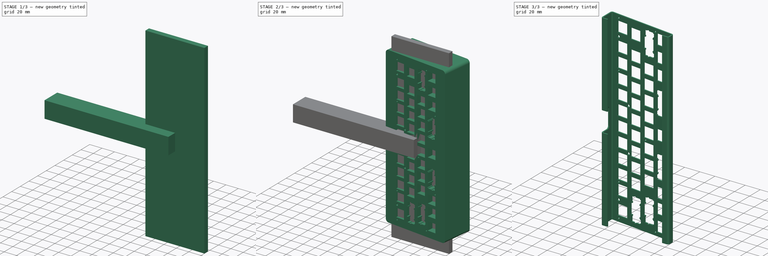
[diagram: build sequence overview — one tinted view per stage of 3, left to right]
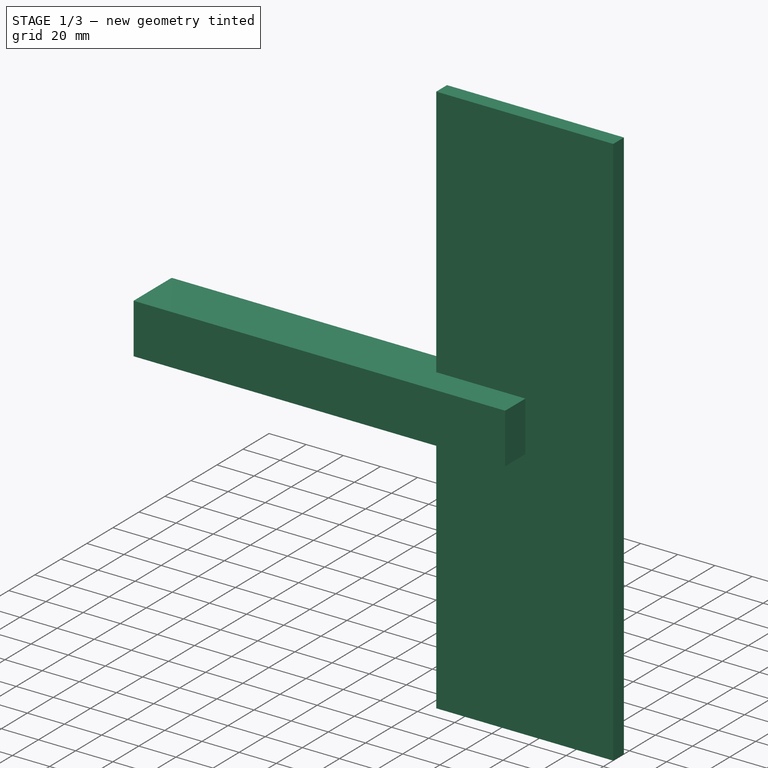
[diagram: stage 1 of 3 — iso view after this stage's code; geometry added in this stage tinted green]
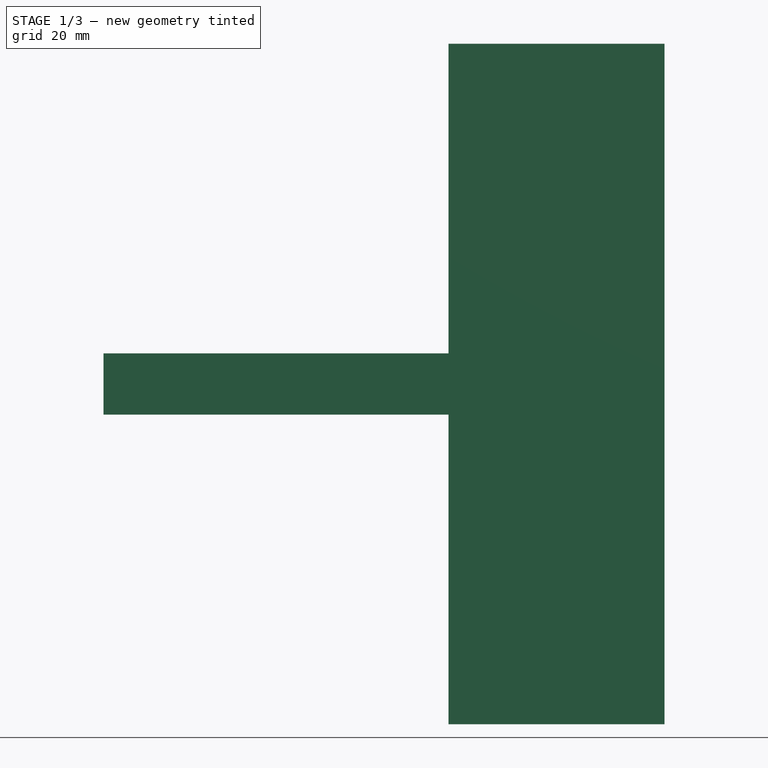
[diagram: stage 1 of 3 — front view after this stage's code; geometry added in this stage tinted green]
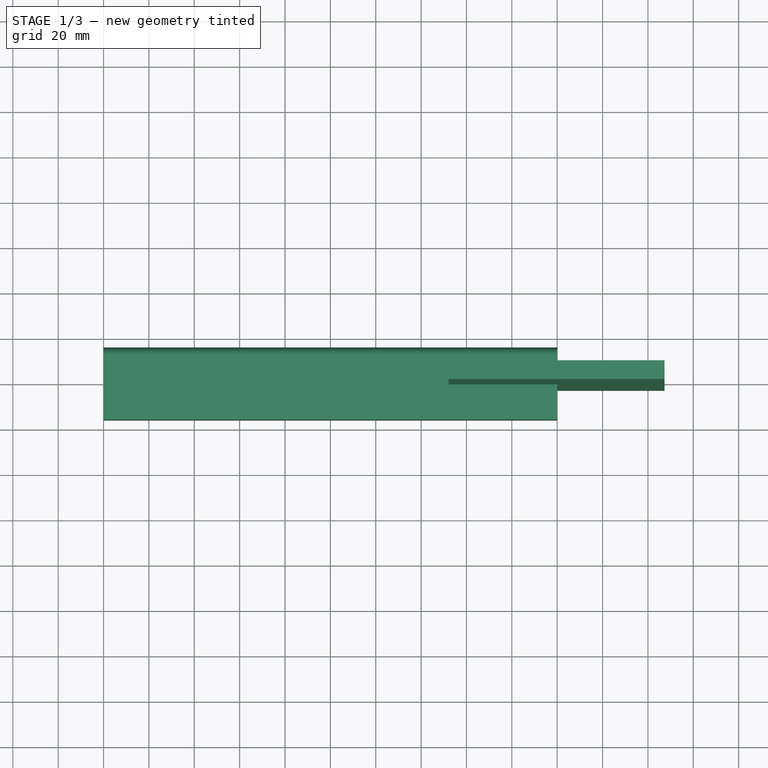
[diagram: stage 1 of 3 — top view after this stage's code; geometry added in this stage tinted green]
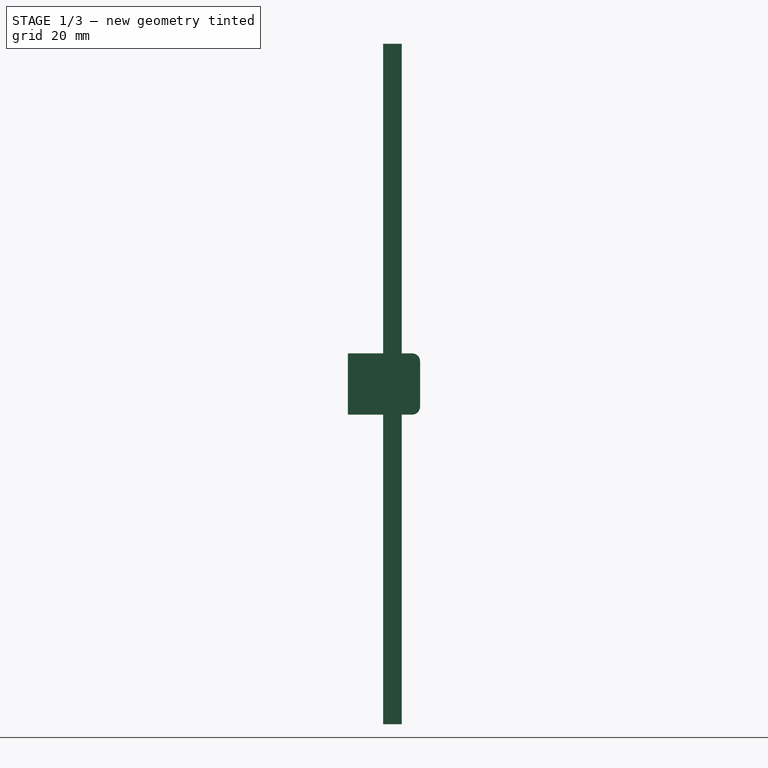
[diagram: stage 1 of 3 — right view after this stage's code; geometry added in this stage tinted green]
FCSTD DOCUMENT  (FreeCAD 0.19R24267 (Git))
Label: HKB40-frame
License: All rights reserved
LicenseURL: http://en.wikipedia.org/wiki/All_rights_reserved
objects: Raytracing::RayFeature×14, Sketcher::SketchObject×6, PartDesign::Pad×4, PartDesign::Body×4, PartDesign::Boolean×3, Raytracing::RayProject×1
note: 21 computed .brp shape members not serialized (recipe doc carries the construction recipe); baked Part::Feature solids carry a one-line shape summary decoded from their .brp

FEATURE [Sketcher::SketchObject] Sketch004
  FullyConstrained = false
  MapMode = 5
  Support = -> [XY_Plane002]
  sketch-geometry (4):
    g0: LineSegment StartX=-47.9317 StartY=5.43547 StartZ=0 EndX=47.2903 EndY=5.43547 EndZ=0
    g1: LineSegment StartX=47.2903 StartY=5.43547 StartZ=0 EndX=47.2903 EndY=-2.79359 EndZ=0
    g2: LineSegment StartX=47.2903 StartY=-2.79359 StartZ=0 EndX=-47.9317 EndY=-2.79359 EndZ=0
    g3: LineSegment StartX=-47.9317 StartY=-2.79359 StartZ=0 EndX=-47.9317 EndY=5.43547 EndZ=0
  constraints (8):
    c: Coincident(g0,g1)
    c: Coincident(g1,g2)
    c: Coincident(g2,g3)
    c: Coincident(g3,g0)
    c: Horizontal(g0)
    c: Horizontal(g2)
    c: Vertical(g1)
    c: Vertical(g3)
FEATURE [PartDesign::Pad] Pad002
  Direction = (1,1,1)
  Length = 300
  Length2 = 100
  Midplane = true
  Profile = -> Sketch004
  Type = 0
FEATURE [Sketcher::SketchObject] Sketch005
  AttachmentOffset = pos=(0,0,-100) rot=(0,0,1;0rad)
  FullyConstrained = false
  MapMode = 5
  Placement = pos=(-100,2.22e-14,-2.22e-14) rot=(0.57735,0.57735,0.57735;2.0944rad)
  Support = -> [YZ_Plane003]
  sketch-geometry (7):
    g0: LineSegment StartX=10 StartY=13.5 StartZ=0 EndX=-18.3003 EndY=13.5 EndZ=0
    g1: LineSegment StartX=-18.3003 StartY=13.5 StartZ=0 EndX=-18.3003 EndY=-13.5 EndZ=0
    g2: LineSegment StartX=-18.3003 StartY=-13.5 StartZ=0 EndX=10 EndY=-13.5 EndZ=0
    g3: LineSegment StartX=13.5 StartY=-10 StartZ=0 EndX=13.5 EndY=10 EndZ=0
    g4: ArcOfCircle CenterX=10 CenterY=10 CenterZ=0 NormalX=0 NormalY=0 NormalZ=1 AngleXU=0 Radius=3.5 StartAngle=1e-16 EndAngle=1.5708
    g5: ArcOfCircle CenterX=10 CenterY=-10 CenterZ=0 NormalX=0 NormalY=0 NormalZ=1 AngleXU=0 Radius=3.5 StartAngle=4.71239 EndAngle=6.28319
    g6: GeomPoint X=13.5 Y=0 Z=0
  constraints (16):
    c: Coincident(g0,g1)
    c: Coincident(g1,g2)
    c: Horizontal(g0)
    c: Horizontal(g2)
    c: Vertical(g1)
    c: Vertical(g3)
    c: Tangent(g3,g4) = -1.5708
    c: Tangent(g0,g4) = -1.5708
    c: Tangent(g3,g5) = -1.5708
    c: Tangent(g2,g5) = -1.5708
    c: Radius(g4) = 3.5
    c: Radius(g5) = 3.5
    c: Distance(g3) = 20
    c: DistanceX(g-1,g4) = 10
    c: PointOnObject(g6,g-1)
    c: Symmetric(g3,g3,g6)
FEATURE [PartDesign::Pad] Pad003
  Direction = (1,1,1)
  Length = 200
  Length2 = 100
  Midplane = true
  Placement = pos=(0,0,0) rot=(0.57735,0.57735,0.57735;2.0944rad)
  Profile = -> Sketch005
  Type = 0
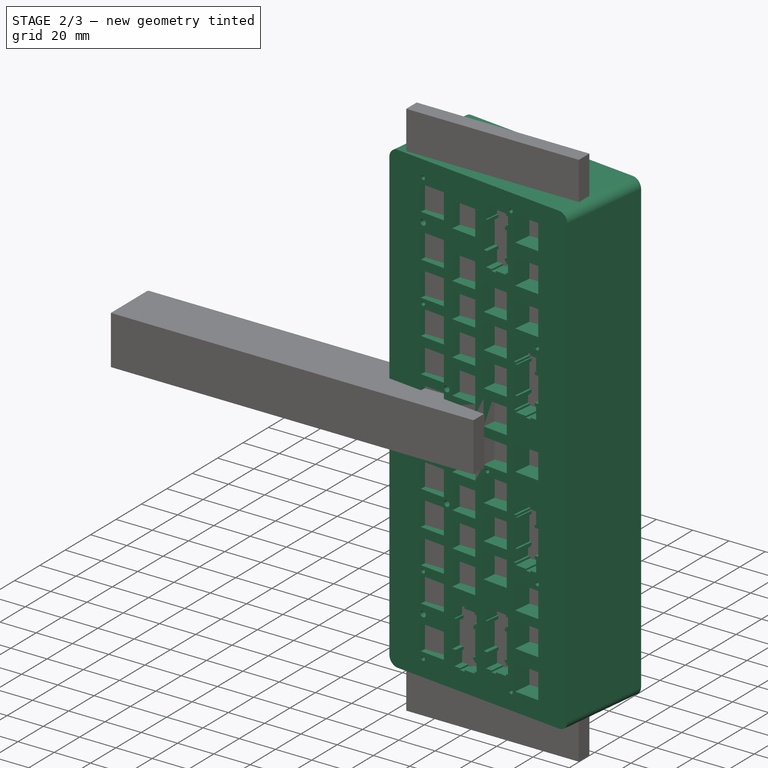
[diagram: stage 2 of 3 — iso view after this stage's code; geometry added in this stage tinted green]
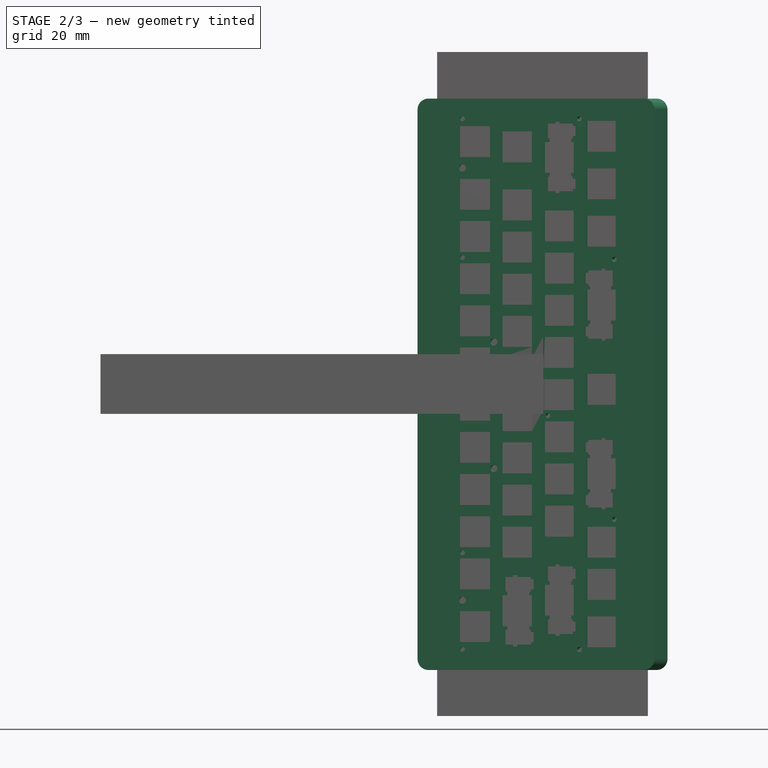
[diagram: stage 2 of 3 — front view after this stage's code; geometry added in this stage tinted green]
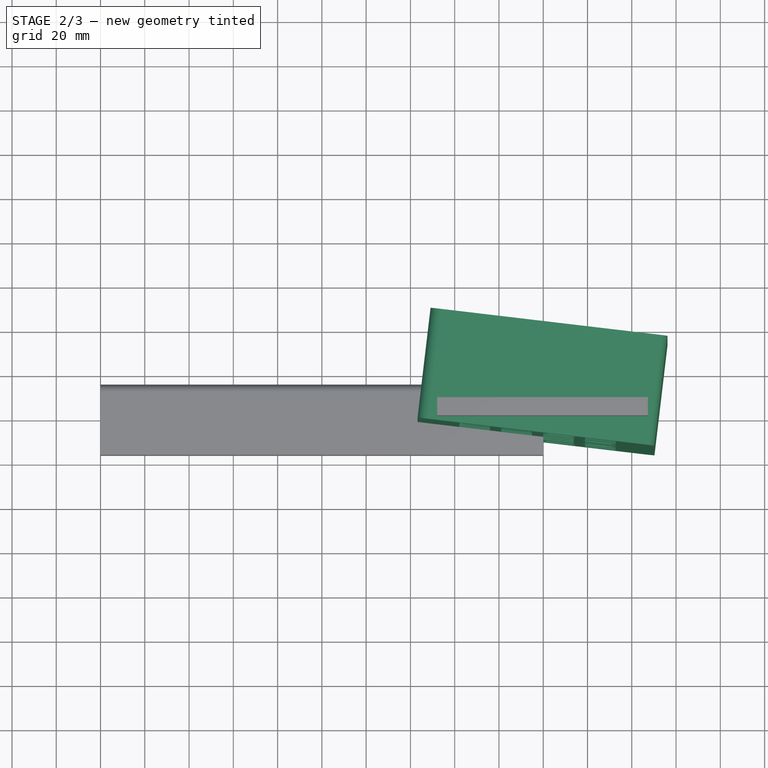
[diagram: stage 2 of 3 — top view after this stage's code; geometry added in this stage tinted green]
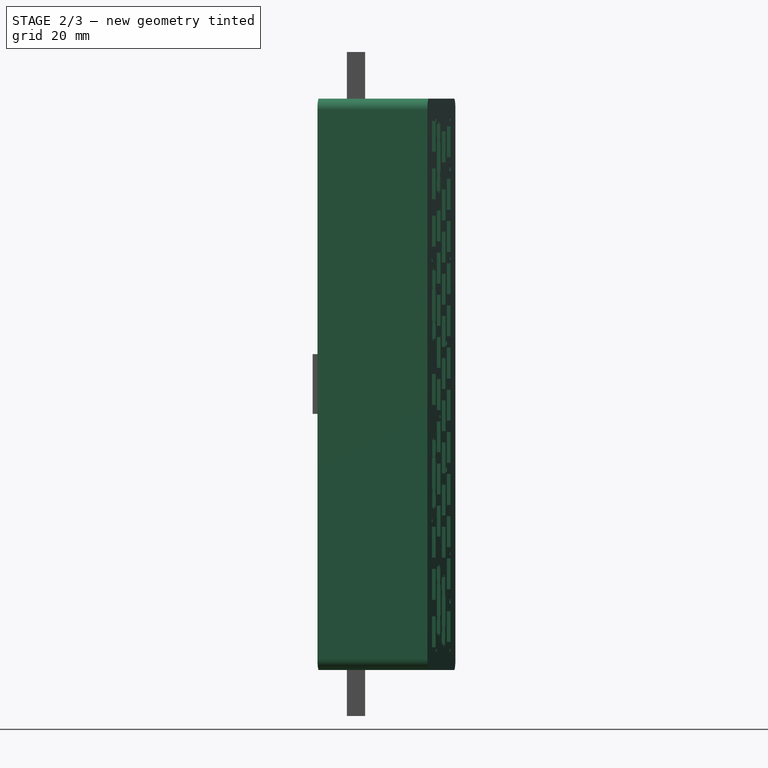
[diagram: stage 2 of 3 — right view after this stage's code; geometry added in this stage tinted green]
FEATURE [Sketcher::SketchObject] Sketch
  FullyConstrained = false
  Support = -> [XY_Plane]
  sketch-geometry (22):
    g0: LineSegment StartX=-34.3371 StartY=0 StartZ=0 EndX=-42.3371 EndY=0 EndZ=0
    g1: LineSegment StartX=-44.8371 StartY=2.5 StartZ=0 EndX=-44.8371 EndY=17.5173 EndZ=0
    g2: LineSegment StartX=-42.043 StartY=20 StartZ=0 EndX=42.3959 EndY=10 EndZ=0
    g3: LineSegment StartX=44.6019 StartY=7.51735 StartZ=0 EndX=44.6019 EndY=2.5 EndZ=0
    g4: LineSegment StartX=42.1019 StartY=0 StartZ=0 EndX=34.1019 EndY=0 EndZ=0
    g5: LineSegment StartX=34.1019 StartY=0 StartZ=0 EndX=34.1019 EndY=1.5 EndZ=0
    g6: LineSegment StartX=34.1019 StartY=1.5 StartZ=0 EndX=42.1019 EndY=1.5 EndZ=0
    g7: LineSegment StartX=43.1019 StartY=2.5 StartZ=0 EndX=43.1019 EndY=7.51735 EndZ=0
    g8: LineSegment StartX=42.2195 StartY=8.51041 StartZ=0 EndX=-42.2195 EndY=18.5104 EndZ=0
    g9: LineSegment StartX=-43.3371 StartY=17.5173 StartZ=0 EndX=-43.3371 EndY=2.5 EndZ=0
    g10: LineSegment StartX=-42.3371 StartY=1.5 StartZ=0 EndX=-34.3371 EndY=1.5 EndZ=0
    g11: LineSegment StartX=-34.3371 StartY=1.5 StartZ=0 EndX=-34.3371 EndY=0 EndZ=0
    g12: ArcOfCircle CenterX=-42.3371 CenterY=2.5 CenterZ=0 NormalX=0 NormalY=0 NormalZ=1 AngleXU=0 Radius=2.5 StartAngle=3.14159 EndAngle=4.71239
    g13: ArcOfCircle CenterX=42.1019 CenterY=2.5 CenterZ=0 NormalX=0 NormalY=0 NormalZ=1 AngleXU=0 Radius=2.5 StartAngle=4.71239 EndAngle=6.28319
    g14: ArcOfCircle CenterX=-42.3371 CenterY=2.5 CenterZ=0 NormalX=0 NormalY=0 NormalZ=1 AngleXU=0 Radius=1 StartAngle=3.14159 EndAngle=4.71239
    g15: ArcOfCircle CenterX=-42.3371 CenterY=17.5173 CenterZ=0 NormalX=0 NormalY=0 NormalZ=1 AngleXU=0 Radius=2.5 StartAngle=1.45292 EndAngle=3.14159
    g16: ArcOfCircle CenterX=-42.3371 CenterY=17.5173 CenterZ=0 NormalX=0 NormalY=0 NormalZ=1 AngleXU=0 Radius=1 StartAngle=1.45292 EndAngle=3.14159
    g17: ArcOfCircle CenterX=42.1019 CenterY=2.5 CenterZ=0 NormalX=0 NormalY=0 NormalZ=1 AngleXU=0 Radius=1 StartAngle=4.71239 EndAngle=6.28319
    g18: ArcOfCircle CenterX=42.1019 CenterY=7.51735 CenterZ=0 NormalX=0 NormalY=0 NormalZ=1 AngleXU=0 Radius=1 StartAngle=0 EndAngle=1.45292
    g19: ArcOfCircle CenterX=42.1019 CenterY=7.51735 CenterZ=0 NormalX=0 NormalY=0 NormalZ=1 AngleXU=0 Radius=2.5 StartAngle=0 EndAngle=1.45292
    g20: GeomPoint X=0 Y=13.5104 Z=0
    g21: GeomPoint X=0 Y=9.98595 Z=0
  constraints (49):
    c: Coincident(g4,g5)
    c: Coincident(g5,g6)
    c: Coincident(g10,g11)
    c: Coincident(g11,g0)
    c: Tangent(g1,g12) = 1.5708
    c: Tangent(g0,g12) = 1.5708
    c: Tangent(g4,g13) = 1.5708
    c: Tangent(g3,g13) = 1.5708
    c: Tangent(g13,g-1)
    c: Tangent(g12,g-1)
    c: Parallel(g0,g-1)
    c: Parallel(g-1,g4)
    c: Perpendicular(g0,g1)
    c: Perpendicular(g3,g4)
    c: Parallel(g7,g3)
    c: Parallel(g9,g1)
    c: Parallel(g10,g0)
    c: Parallel(g6,g4)
    c: Parallel(g8,g2)
    c: Perpendicular(g0,g11)
    c: Perpendicular(g5,g4)
    c: Distance(g11) = 1.5
    c: Tangent(g10,g14) = -1.5708
    c: Tangent(g9,g14) = -1.5708
    c: Tangent(g1,g15) = 1.5708
    c: Tangent(g2,g15) = 1.5708
    c: Tangent(g9,g16) = -1.5708
    c: Tangent(g8,g16) = -1.5708
    c: Tangent(g6,g17) = -1.5708
    c: Tangent(g7,g17) = -1.5708
    c: Tangent(g7,g18) = -1.5708
    c: Tangent(g8,g18) = -1.5708
    c: Tangent(g2,g19) = 1.5708
    c: Tangent(g3,g19) = 1.5708
    c: Coincident(g14,g12)
    c: Coincident(g15,g16)
    c: Coincident(g18,g19)
    c: Coincident(g17,g13)
    c: Distance(g0) = 8
    c: Distance(g4) = 8
    c: DistanceY(g-1,g2) = 10
    c: DistanceY(g-1,g2) = 20
    c: Radius(g15) = 2.5
    c: Equal(g15,g12)
    c: Equal(g15,g19)
    c: Equal(g15,g13)
    c: PointOnObject(g20,g-2)
    c: Symmetric(g8,g8,g20)
    c: PointOnObject(g21,g-2)
FEATURE [Sketcher::SketchObject] Sketch001
  FullyConstrained = false
  MapMode = 5
  sketch-geometry (30):
    g0: LineSegment StartX=-35.3456 StartY=0 StartZ=0 EndX=-41.3456 EndY=0 EndZ=0
    g1: LineSegment StartX=-43.8456 StartY=2.5 StartZ=0 EndX=-43.8456 EndY=15.5148 EndZ=0
    g2: LineSegment StartX=-41.0744 StartY=18 StartZ=0 EndX=41.3999 EndY=9 EndZ=0
    g3: LineSegment StartX=43.6287 StartY=6.51475 StartZ=0 EndX=43.6287 EndY=2.5 EndZ=0
    g4: LineSegment StartX=41.1287 StartY=0 StartZ=0 EndX=35.1287 EndY=0 EndZ=0
    g5: LineSegment StartX=35.1287 StartY=0 StartZ=0 EndX=35.1287 EndY=1.5 EndZ=0
    g6: LineSegment StartX=35.1287 StartY=1.5 StartZ=0 EndX=41.1287 EndY=1.5 EndZ=0
    g7: LineSegment StartX=42.1287 StartY=2.5 StartZ=0 EndX=42.1287 EndY=6.51475 EndZ=0
    g8: LineSegment StartX=41.2371 StartY=7.50885 StartZ=0 EndX=-41.2371 EndY=16.5089 EndZ=0
    g9: LineSegment StartX=-42.3456 StartY=15.5148 StartZ=0 EndX=-42.3456 EndY=2.5 EndZ=0
    g10: LineSegment StartX=-41.3456 StartY=1.5 StartZ=0 EndX=-35.3456 EndY=1.5 EndZ=0
    g11: LineSegment StartX=-35.3456 StartY=1.5 StartZ=0 EndX=-35.3456 EndY=0 EndZ=0
    g12: ArcOfCircle CenterX=-41.3456 CenterY=2.5 CenterZ=0 NormalX=0 NormalY=0 NormalZ=1 AngleXU=0 Radius=2.5 StartAngle=3.14159 EndAngle=4.71239
    g13: ArcOfCircle CenterX=41.1287 CenterY=2.5 CenterZ=0 NormalX=0 NormalY=0 NormalZ=1 AngleXU=0 Radius=2.5 StartAngle=4.71239 EndAngle=6.28319
    g14: ArcOfCircle CenterX=-41.3456 CenterY=2.5 CenterZ=0 NormalX=0 NormalY=0 NormalZ=1 AngleXU=0 Radius=1 StartAngle=3.14159 EndAngle=4.71239
    g15: ArcOfCircle CenterX=-41.3456 CenterY=15.5148 CenterZ=0 NormalX=0 NormalY=0 NormalZ=1 AngleXU=0 Radius=2.5 StartAngle=1.4621 EndAngle=3.14159
    g16: ArcOfCircle CenterX=-41.3456 CenterY=15.5148 CenterZ=0 NormalX=0 NormalY=0 NormalZ=1 AngleXU=0 Radius=1 StartAngle=1.4621 EndAngle=3.14159
    g17: ArcOfCircle CenterX=41.1287 CenterY=2.5 CenterZ=0 NormalX=0 NormalY=0 NormalZ=1 AngleXU=0 Radius=1 StartAngle=4.71239 EndAngle=6.28319
    g18: ArcOfCircle CenterX=41.1287 CenterY=6.51475 CenterZ=0 NormalX=0 NormalY=0 NormalZ=1 AngleXU=0 Radius=1 StartAngle=0 EndAngle=1.4621
    g19: ArcOfCircle CenterX=41.1287 CenterY=6.51475 CenterZ=0 NormalX=0 NormalY=0 NormalZ=1 AngleXU=0 Radius=2.5 StartAngle=0 EndAngle=1.4621
    g20: LineSegment StartX=-37.8752 StartY=12.6212 StartZ=0 EndX=37.8752 EndY=4.35495 EndZ=0
    g21: LineSegment StartX=37.8752 StartY=4.35495 StartZ=0 EndX=37.7016 EndY=2.76439 EndZ=0
    g22: LineSegment StartX=37.7016 StartY=2.76439 StartZ=0 EndX=-38.0487 EndY=11.0306 EndZ=0
    g23: LineSegment StartX=-38.0487 StartY=11.0306 StartZ=0 EndX=-37.8752 EndY=12.6212 EndZ=0
    g24: GeomPoint X=0 Y=12.0089 Z=0
    g25: GeomPoint X=0 Y=8.48807 Z=0
    g26: LineSegment StartX=-17.9847 StartY=13.9714 StartZ=0 EndX=-18.3644 EndY=10.4921 EndZ=0
    g27: LineSegment StartX=-18.3644 StartY=10.4921 StartZ=0 EndX=-9.45 EndY=9.51931 EndZ=0
    g28: LineSegment StartX=-9.45 StartY=9.51931 StartZ=0 EndX=-9.07032 EndY=12.9986 EndZ=0
    g29: LineSegment StartX=-9.07032 StartY=12.9986 StartZ=0 EndX=-17.9847 EndY=13.9714 EndZ=0
  constraints (72):
    c: Coincident(g4,g5)
    c: Coincident(g5,g6)
    c: Coincident(g10,g11)
    c: Coincident(g11,g0)
    c: Tangent(g1,g12) = 1.5708
    c: Tangent(g0,g12) = 1.5708
    c: Tangent(g4,g13) = 1.5708
    c: Tangent(g3,g13) = 1.5708
    c: Tangent(g13,g-1)
    c: Tangent(g12,g-1)
    c: Parallel(g0,g-1)
    c: Parallel(g-1,g4)
    c: Perpendicular(g0,g1)
    c: Perpendicular(g3,g4)
    c: Parallel(g7,g3)
    c: Parallel(g9,g1)
    c: Parallel(g10,g0)
    c: Parallel(g6,g4)
    c: Parallel(g8,g2)
    c: Perpendicular(g0,g11)
    c: Perpendicular(g5,g4)
    c: Distance(g11) = 1.5
    c: Tangent(g10,g14) = -1.5708
    c: Tangent(g9,g14) = -1.5708
    c: Tangent(g1,g15) = 1.5708
    c: Tangent(g2,g15) = 1.5708
    c: Tangent(g9,g16) = -1.5708
    c: Tangent(g8,g16) = -1.5708
    c: Tangent(g6,g17) = -1.5708
    c: Tangent(g7,g17) = -1.5708
    c: Tangent(g7,g18) = -1.5708
    c: Tangent(g8,g18) = -1.5708
    c: Tangent(g2,g19) = 1.5708
    c: Tangent(g3,g19) = 1.5708
    c: Coincident(g14,g12)
    c: Coincident(g15,g16)
    c: Coincident(g18,g19)
    c: Coincident(g17,g13)
    c: Distance(g0) = 6
    c: Distance(g4) = 6
    c: DistanceY(g-1,g2) = 9
    c: DistanceY(g-1,g2) = 18
    c: Radius(g15) = 2.5
    c: Equal(g15,g12)
    c: Equal(g15,g19)
    c: Equal(g15,g13)
    c: Coincident(g20,g21)
    c: Coincident(g21,g22)
    c: Coincident(g22,g23)
    c: Coincident(g23,g20)
    c: Parallel(g22,g20)
    c: Perpendicular(g21,g22)
    c: Perpendicular(g22,g23)
    c: Distance(g21) = 1.6
    c: Parallel(g22,g8)
    c: Distance(g22) = 76.2
    c: PointOnObject(g24,g-2)
    c: Symmetric(g8,g8,g24)
    c: Symmetric(g20,g20,g25)
    c: PointOnObject(g25,g-2)
    c: Distance(g8,g21) = 3
    c: Distance(g20,g8) = 3.5
    c: Coincident(g26,g27)
    c: Coincident(g27,g28)
    c: Coincident(g28,g29)
    c: Coincident(g29,g26)
    c: PointOnObject(g26,g8)
    c: PointOnObject(g26,g20)
    c: Perpendicular(g27,g26)
    c: Parallel(g27,g20)
    c: Perpendicular(g26,g29)
    c: Parallel(g26,g28)
FEATURE [Sketcher::SketchObject] Sketch002  label="HKB40-plate"
  AttachmentOffset = pos=(30,109.5,0) rot=(0,0,1;-1.5708rad)
  FullyConstrained = false
  MapMode = 5
  Placement = pos=(-28.0375,18.3413,109.5) rot=(-0.553292,0.622684,0.553292;2.02773rad)
  sketch-geometry (349):
    g0: LineSegment StartX=238.703 StartY=20.9834 StartZ=0 EndX=238.703 EndY=-76.7988 EndZ=0
    g1: LineSegment StartX=233.703 StartY=25.9834 StartZ=0 EndX=-14.4458 EndY=25.9834 EndZ=0
    g2: LineSegment StartX=-14.4458 StartY=-81.7988 StartZ=0 EndX=233.703 EndY=-81.7988 EndZ=0
    g3: LineSegment StartX=-19.4458 StartY=-76.7988 StartZ=0 EndX=-19.4458 EndY=20.9834 EndZ=0
    g4: LineSegment StartX=-9.36625 StartY=-64.135 StartZ=0 EndX=-9.36625 EndY=-50.165 EndZ=0
    g5: LineSegment StartX=4.60375 StartY=-64.135 StartZ=0 EndX=-9.36625 EndY=-64.135 EndZ=0
    g6: LineSegment StartX=-9.36625 StartY=-50.165 StartZ=0 EndX=4.60375 EndY=-50.165 EndZ=0
    g7: LineSegment StartX=4.60375 StartY=-50.165 StartZ=0 EndX=4.60375 EndY=-64.135 EndZ=0
    g8: LineSegment StartX=12.065 StartY=-64.135 StartZ=0 EndX=12.065 EndY=-50.165 EndZ=0
    g9: LineSegment StartX=26.035 StartY=-64.135 StartZ=0 EndX=12.065 EndY=-64.135 EndZ=0
    g10: LineSegment StartX=12.065 StartY=-50.165 StartZ=0 EndX=26.035 EndY=-50.165 EndZ=0
    g11: LineSegment StartX=26.035 StartY=-50.165 StartZ=0 EndX=26.035 EndY=-64.135 EndZ=0
    g12: LineSegment StartX=47.4663 StartY=-64.135 StartZ=0 EndX=33.4963 EndY=-64.135 EndZ=0
    g13: LineSegment StartX=47.4663 StartY=-50.165 StartZ=0 EndX=47.4663 EndY=-64.135 EndZ=0
    g14: LineSegment StartX=33.4963 StartY=-64.135 StartZ=0 EndX=33.4963 EndY=-50.165 EndZ=0
    g15: LineSegment StartX=33.4963 StartY=-50.165 StartZ=0 EndX=47.4663 EndY=-50.165 EndZ=0
    g16: Circle CenterX=-10.3187 CenterY=-47.625 CenterZ=0 NormalX=0 NormalY=0 NormalZ=1 AngleXU=0 Radius=1.1
    g17: Circle CenterX=53.1813 CenterY=-63.5 CenterZ=0 NormalX=0 NormalY=0 NormalZ=1 AngleXU=0 Radius=1.1
    g18: LineSegment StartX=80.8038 StartY=-62.0268 StartZ=0 EndX=80.8038 EndY=-64.135 EndZ=0
    g19: LineSegment StartX=82.4294 StartY=-62.0268 StartZ=0 EndX=80.8038 EndY=-62.0268 EndZ=0
    g20: LineSegment StartX=80.8038 StartY=-64.135 StartZ=0 EndX=66.8338 EndY=-64.135 EndZ=0
    g21: LineSegment StartX=82.4294 StartY=-62.8396 StartZ=0 EndX=82.4294 EndY=-62.0268 EndZ=0
    g22: LineSegment StartX=66.8338 StartY=-64.135 StartZ=0 EndX=66.8338 EndY=-62.0268 EndZ=0
    g23: LineSegment StartX=89.0842 StartY=-62.8396 StartZ=0 EndX=82.4294 EndY=-62.8396 EndZ=0
    g24: LineSegment StartX=66.8338 StartY=-62.0268 StartZ=0 EndX=65.2082 EndY=-62.0268 EndZ=0
    g25: LineSegment StartX=89.0842 StartY=-59.436 StartZ=0 EndX=89.0842 EndY=-62.8396 EndZ=0
    g26: LineSegment StartX=65.2082 StartY=-62.0268 StartZ=0 EndX=65.2082 EndY=-62.8396 EndZ=0
    g27: LineSegment StartX=89.9478 StartY=-59.436 StartZ=0 EndX=89.0842 EndY=-59.436 EndZ=0
    g28: LineSegment StartX=65.2082 StartY=-62.8396 StartZ=0 EndX=58.15 EndY=-62.8396 EndZ=0
    g29: LineSegment StartX=89.9478 StartY=-56.642 StartZ=0 EndX=89.9478 EndY=-59.436 EndZ=0
    g30: LineSegment StartX=58.15 StartY=-62.8396 StartZ=0 EndX=58.15 EndY=-59.436 EndZ=0
    g31: LineSegment StartX=89.0842 StartY=-56.642 StartZ=0 EndX=89.9478 EndY=-56.642 EndZ=0
    g32: LineSegment StartX=58.15 StartY=-59.436 StartZ=0 EndX=57.29 EndY=-59.436 EndZ=0
    g33: LineSegment StartX=89.0842 StartY=-50.546 StartZ=0 EndX=89.0842 EndY=-56.642 EndZ=0
    g34: LineSegment StartX=57.29 StartY=-59.436 StartZ=0 EndX=57.29 EndY=-56.642 EndZ=0
    g35: LineSegment StartX=88.0428 StartY=-50.546 StartZ=0 EndX=89.0842 EndY=-50.546 EndZ=0
    g36: LineSegment StartX=57.29 StartY=-56.642 StartZ=0 EndX=58.15 EndY=-56.642 EndZ=0
    g37: LineSegment StartX=88.0428 StartY=-49.3776 StartZ=0 EndX=88.0428 EndY=-50.546 EndZ=0
    g38: LineSegment StartX=58.15 StartY=-56.642 StartZ=0 EndX=58.15 EndY=-50.546 EndZ=0
    g39: LineSegment StartX=83.4708 StartY=-49.3776 StartZ=0 EndX=88.0428 EndY=-49.3776 EndZ=0
    g40: LineSegment StartX=58.15 StartY=-50.546 StartZ=0 EndX=59.19 EndY=-50.546 EndZ=0
    g41: LineSegment StartX=83.4708 StartY=-50.546 StartZ=0 EndX=83.4708 EndY=-49.3776 EndZ=0
    g42: LineSegment StartX=59.19 StartY=-50.546 StartZ=0 EndX=59.19 EndY=-49.3776 EndZ=0
    g43: LineSegment StartX=82.4294 StartY=-50.546 StartZ=0 EndX=83.4708 EndY=-50.546 EndZ=0
    g44: LineSegment StartX=59.19 StartY=-49.3776 StartZ=0 EndX=64.1668 EndY=-49.3776 EndZ=0
    g45: LineSegment StartX=82.4294 StartY=-51.3334 StartZ=0 EndX=82.4294 EndY=-50.546 EndZ=0
    g46: LineSegment StartX=64.1668 StartY=-49.3776 StartZ=0 EndX=64.1668 EndY=-50.546 EndZ=0
    g47: LineSegment StartX=80.8038 StartY=-51.3334 StartZ=0 EndX=82.4294 EndY=-51.3334 EndZ=0
    g48: LineSegment StartX=64.1668 StartY=-50.546 StartZ=0 EndX=65.2082 EndY=-50.546 EndZ=0
    g49: LineSegment StartX=80.8038 StartY=-50.165 StartZ=0 EndX=80.8038 EndY=-51.3334 EndZ=0
    g50: LineSegment StartX=65.2082 StartY=-50.546 StartZ=0 EndX=65.2082 EndY=-51.3334 EndZ=0
    g51: LineSegment StartX=66.8338 StartY=-50.165 StartZ=0 EndX=80.8038 EndY=-50.165 EndZ=0
    g52: LineSegment StartX=65.2082 StartY=-51.3334 StartZ=0 EndX=66.8338 EndY=-51.3334 EndZ=0
    g53: LineSegment StartX=66.8338 StartY=-51.3334 StartZ=0 EndX=66.8338 EndY=-50.165 EndZ=0
    g54: LineSegment StartX=0.15875 StartY=-33.2232 StartZ=0 EndX=0.15875 EndY=-31.115 EndZ=0
    g55: LineSegment StartX=-1.46685 StartY=-33.2232 StartZ=0 EndX=0.15875 EndY=-33.2232 EndZ=0
    g56: LineSegment StartX=0.15875 StartY=-31.115 StartZ=0 EndX=14.1288 EndY=-31.115 EndZ=0
    g57: LineSegment StartX=-1.46685 StartY=-32.4104 StartZ=0 EndX=-1.46685 EndY=-33.2232 EndZ=0
    g58: LineSegment StartX=14.1288 StartY=-31.115 StartZ=0 EndX=14.1288 EndY=-33.2232 EndZ=0
    g59: LineSegment StartX=-8.12165 StartY=-32.4104 StartZ=0 EndX=-1.46685 EndY=-32.4104 EndZ=0
    g60: LineSegment StartX=14.1288 StartY=-33.2232 StartZ=0 EndX=15.7544 EndY=-33.2232 EndZ=0
    g61: LineSegment StartX=-8.12165 StartY=-35.814 StartZ=0 EndX=-8.12165 EndY=-32.4104 EndZ=0
    g62: LineSegment StartX=15.7544 StartY=-33.2232 StartZ=0 EndX=15.7544 EndY=-32.4104 EndZ=0
    g63: LineSegment StartX=-8.98525 StartY=-35.814 StartZ=0 EndX=-8.12165 EndY=-35.814 EndZ=0
    g64: LineSegment StartX=15.7544 StartY=-32.4104 StartZ=0 EndX=22.4092 EndY=-32.4104 EndZ=0
    g65: LineSegment StartX=-8.98525 StartY=-38.608 StartZ=0 EndX=-8.98525 EndY=-35.814 EndZ=0
    g66: LineSegment StartX=22.4092 StartY=-32.4104 StartZ=0 EndX=22.4092 EndY=-35.814 EndZ=0
    g67: LineSegment StartX=-8.12165 StartY=-38.608 StartZ=0 EndX=-8.98525 EndY=-38.608 EndZ=0
    g68: LineSegment StartX=22.4092 StartY=-35.814 StartZ=0 EndX=23.2728 EndY=-35.814 EndZ=0
    g69: LineSegment StartX=-8.12165 StartY=-44.704 StartZ=0 EndX=-8.12165 EndY=-38.608 EndZ=0
    g70: LineSegment StartX=23.2728 StartY=-35.814 StartZ=0 EndX=23.2728 EndY=-38.608 EndZ=0
    g71: LineSegment StartX=-7.08025 StartY=-44.704 StartZ=0 EndX=-8.12165 EndY=-44.704 EndZ=0
    g72: LineSegment StartX=23.2728 StartY=-38.608 StartZ=0 EndX=22.4092 EndY=-38.608 EndZ=0
    g73: LineSegment StartX=-7.08025 StartY=-45.8724 StartZ=0 EndX=-7.08025 EndY=-44.704 EndZ=0
    g74: LineSegment StartX=22.4092 StartY=-38.608 StartZ=0 EndX=22.4092 EndY=-44.704 EndZ=0
    g75: LineSegment StartX=-2.50825 StartY=-45.8724 StartZ=0 EndX=-7.08025 EndY=-45.8724 EndZ=0
    g76: LineSegment StartX=22.4092 StartY=-44.704 StartZ=0 EndX=21.3678 EndY=-44.704 EndZ=0
    g77: LineSegment StartX=-2.50825 StartY=-44.704 StartZ=0 EndX=-2.50825 EndY=-45.8724 EndZ=0
    g78: LineSegment StartX=21.3678 StartY=-44.704 StartZ=0 EndX=21.3678 EndY=-45.8724 EndZ=0
    g79: LineSegment StartX=-1.46685 StartY=-44.704 StartZ=0 EndX=-2.50825 EndY=-44.704 EndZ=0
    g80: LineSegment StartX=21.3678 StartY=-45.8724 StartZ=0 EndX=16.7958 EndY=-45.8724 EndZ=0
    g81: LineSegment StartX=-1.46685 StartY=-43.9166 StartZ=0 EndX=-1.46685 EndY=-44.704 EndZ=0
    g82: LineSegment StartX=16.7958 StartY=-45.8724 StartZ=0 EndX=16.7958 EndY=-44.704 EndZ=0
    g83: LineSegment StartX=0.15875 StartY=-43.9166 StartZ=0 EndX=-1.46685 EndY=-43.9166 EndZ=0
    g84: LineSegment StartX=16.7958 StartY=-44.704 StartZ=0 EndX=15.7544 EndY=-44.704 EndZ=0
    g85: LineSegment StartX=0.15875 StartY=-45.085 StartZ=0 EndX=0.15875 EndY=-43.9166 EndZ=0
    g86: LineSegment StartX=15.7544 StartY=-44.704 StartZ=0 EndX=15.7544 EndY=-43.9166 EndZ=0
    g87: LineSegment StartX=14.1288 StartY=-45.085 StartZ=0 EndX=0.15875 EndY=-45.085 EndZ=0
    g88: LineSegment StartX=15.7544 StartY=-43.9166 StartZ=0 EndX=14.1288 EndY=-43.9166 EndZ=0
    g89: LineSegment StartX=14.1288 StartY=-43.9166 StartZ=0 EndX=14.1288 EndY=-45.085 EndZ=0
    g90: LineSegment StartX=45.085 StartY=-45.085 StartZ=0 EndX=31.115 EndY=-45.085 EndZ=0
    g91: LineSegment StartX=45.085 StartY=-31.115 StartZ=0 EndX=45.085 EndY=-45.085 EndZ=0
    g92: LineSegment StartX=31.115 StartY=-45.085 StartZ=0 EndX=31.115 EndY=-31.115 EndZ=0
    g93: LineSegment StartX=31.115 StartY=-31.115 StartZ=0 EndX=45.085 EndY=-31.115 EndZ=0
    g94: LineSegment StartX=50.165 StartY=-45.085 StartZ=0 EndX=50.165 EndY=-31.115 EndZ=0
    g95: LineSegment StartX=64.135 StartY=-45.085 StartZ=0 EndX=50.165 EndY=-45.085 EndZ=0
    g96: LineSegment StartX=50.165 StartY=-31.115 StartZ=0 EndX=64.135 EndY=-31.115 EndZ=0
    g97: LineSegment StartX=64.135 StartY=-31.115 StartZ=0 EndX=64.135 EndY=-45.085 EndZ=0
    g98: LineSegment StartX=83.185 StartY=-45.085 StartZ=0 EndX=69.215 EndY=-45.085 EndZ=0
    g99: LineSegment StartX=83.185 StartY=-31.115 StartZ=0 EndX=83.185 EndY=-45.085 EndZ=0
    g100: LineSegment StartX=69.215 StartY=-45.085 StartZ=0 EndX=69.215 EndY=-31.115 EndZ=0
    g101: LineSegment StartX=69.215 StartY=-31.115 StartZ=0 EndX=83.185 EndY=-31.115 EndZ=0
    g102: LineSegment StartX=88.265 StartY=-45.085 StartZ=0 EndX=88.265 EndY=-31.115 EndZ=0
    g103: LineSegment StartX=102.235 StartY=-45.085 StartZ=0 EndX=88.265 EndY=-45.085 EndZ=0
    g104: LineSegment StartX=88.265 StartY=-31.115 StartZ=0 EndX=102.235 EndY=-31.115 EndZ=0
    g105: LineSegment StartX=102.235 StartY=-31.115 StartZ=0 EndX=102.235 EndY=-45.085 EndZ=0
    g106: LineSegment StartX=104.934 StartY=-64.135 StartZ=0 EndX=104.934 EndY=-50.165 EndZ=0
    g107: LineSegment StartX=118.904 StartY=-64.135 StartZ=0 EndX=104.934 EndY=-64.135 EndZ=0
    g108: LineSegment StartX=104.934 StartY=-50.165 StartZ=0 EndX=118.904 EndY=-50.165 EndZ=0
    g109: LineSegment StartX=118.904 StartY=-50.165 StartZ=0 EndX=118.904 EndY=-64.135 EndZ=0
    g110: LineSegment StartX=157.004 StartY=-62.0268 StartZ=0 EndX=157.004 EndY=-64.135 EndZ=0
    g111: LineSegment StartX=158.629 StartY=-62.0268 StartZ=0 EndX=157.004 EndY=-62.0268 EndZ=0
    g112: LineSegment StartX=157.004 StartY=-64.135 StartZ=0 EndX=143.034 EndY=-64.135 EndZ=0
    g113: LineSegment StartX=158.629 StartY=-62.8396 StartZ=0 EndX=158.629 EndY=-62.0268 EndZ=0
    g114: LineSegment StartX=143.034 StartY=-64.135 StartZ=0 EndX=143.034 EndY=-62.0268 EndZ=0
    g115: LineSegment StartX=165.284 StartY=-62.8396 StartZ=0 EndX=158.629 EndY=-62.8396 EndZ=0
    g116: LineSegment StartX=143.034 StartY=-62.0268 StartZ=0 EndX=141.408 EndY=-62.0268 EndZ=0
    g117: LineSegment StartX=165.284 StartY=-59.436 StartZ=0 EndX=165.284 EndY=-62.8396 EndZ=0
    g118: LineSegment StartX=141.408 StartY=-62.0268 StartZ=0 EndX=141.408 EndY=-62.8396 EndZ=0
    g119: LineSegment StartX=166.148 StartY=-59.436 StartZ=0 EndX=165.284 EndY=-59.436 EndZ=0
    g120: LineSegment StartX=141.408 StartY=-62.8396 StartZ=0 EndX=134.753 EndY=-62.8396 EndZ=0
    g121: LineSegment StartX=166.148 StartY=-56.642 StartZ=0 EndX=166.148 EndY=-59.436 EndZ=0
    g122: LineSegment StartX=134.753 StartY=-62.8396 StartZ=0 EndX=134.753 EndY=-59.436 EndZ=0
    g123: LineSegment StartX=165.284 StartY=-56.642 StartZ=0 EndX=166.148 EndY=-56.642 EndZ=0
    g124: LineSegment StartX=134.753 StartY=-59.436 StartZ=0 EndX=133.89 EndY=-59.436 EndZ=0
    g125: LineSegment StartX=165.284 StartY=-50.546 StartZ=0 EndX=165.284 EndY=-56.642 EndZ=0
    g126: LineSegment StartX=133.89 StartY=-59.436 StartZ=0 EndX=133.89 EndY=-56.642 EndZ=0
    g127: LineSegment StartX=164.243 StartY=-50.546 StartZ=0 EndX=165.284 EndY=-50.546 EndZ=0
    g128: LineSegment StartX=133.89 StartY=-56.642 StartZ=0 EndX=134.753 EndY=-56.642 EndZ=0
    g129: LineSegment StartX=164.243 StartY=-49.3776 StartZ=0 EndX=164.243 EndY=-50.546 EndZ=0
    g130: LineSegment StartX=134.753 StartY=-56.642 StartZ=0 EndX=134.753 EndY=-50.546 EndZ=0
    g131: LineSegment StartX=159.671 StartY=-49.3776 StartZ=0 EndX=164.243 EndY=-49.3776 EndZ=0
    g132: LineSegment StartX=134.753 StartY=-50.546 StartZ=0 EndX=135.795 EndY=-50.546 EndZ=0
    g133: LineSegment StartX=159.671 StartY=-50.546 StartZ=0 EndX=159.671 EndY=-49.3776 EndZ=0
    g134: LineSegment StartX=135.795 StartY=-50.546 StartZ=0 EndX=135.795 EndY=-49.3776 EndZ=0
    g135: LineSegment StartX=158.629 StartY=-50.546 StartZ=0 EndX=159.671 EndY=-50.546 EndZ=0
    g136: LineSegment StartX=135.795 StartY=-49.3776 StartZ=0 EndX=140.367 EndY=-49.3776 EndZ=0
    g137: LineSegment StartX=158.629 StartY=-51.3334 StartZ=0 EndX=158.629 EndY=-50.546 EndZ=0
    g138: LineSegment StartX=140.367 StartY=-49.3776 StartZ=0 EndX=140.367 EndY=-50.546 EndZ=0
    g139: LineSegment StartX=157.004 StartY=-51.3334 StartZ=0 EndX=158.629 EndY=-51.3334 EndZ=0
    g140: LineSegment StartX=140.367 StartY=-50.546 StartZ=0 EndX=141.408 EndY=-50.546 EndZ=0
    g141: LineSegment StartX=157.004 StartY=-50.165 StartZ=0 EndX=157.004 EndY=-51.3334 EndZ=0
    g142: LineSegment StartX=141.408 StartY=-50.546 StartZ=0 EndX=141.408 EndY=-51.3334 EndZ=0
    g143: LineSegment StartX=143.034 StartY=-50.165 StartZ=0 EndX=157.004 EndY=-50.165 EndZ=0
    g144: LineSegment StartX=141.408 StartY=-51.3334 StartZ=0 EndX=143.034 EndY=-51.3334 EndZ=0
    g145: LineSegment StartX=143.034 StartY=-51.3334 StartZ=0 EndX=143.034 EndY=-50.165 EndZ=0
    g146: Circle CenterX=170.656 CenterY=-63.5 CenterZ=0 NormalX=0 NormalY=0 NormalZ=1 AngleXU=0 Radius=1.1
    g147: LineSegment StartX=187.96 StartY=-64.135 StartZ=0 EndX=173.99 EndY=-64.135 EndZ=0
    g148: LineSegment StartX=187.96 StartY=-50.165 StartZ=0 EndX=187.96 EndY=-64.135 EndZ=0
    g149: LineSegment StartX=173.99 StartY=-64.135 StartZ=0 EndX=173.99 EndY=-50.165 EndZ=0
    g150: LineSegment StartX=173.99 StartY=-50.165 StartZ=0 EndX=187.96 EndY=-50.165 EndZ=0
    g151: LineSegment StartX=193.04 StartY=-64.135 StartZ=0 EndX=193.04 EndY=-50.165 EndZ=0
    g152: LineSegment StartX=207.01 StartY=-64.135 StartZ=0 EndX=193.04 EndY=-64.135 EndZ=0
    g153: LineSegment StartX=193.04 StartY=-50.165 StartZ=0 EndX=207.01 EndY=-50.165 EndZ=0
    g154: LineSegment StartX=207.01 StartY=-50.165 StartZ=0 EndX=207.01 EndY=-64.135 EndZ=0
    g155: LineSegment StartX=214.471 StartY=-64.135 StartZ=0 EndX=214.471 EndY=-50.165 EndZ=0
    g156: LineSegment StartX=228.441 StartY=-64.135 StartZ=0 EndX=214.471 EndY=-64.135 EndZ=0
    g157: LineSegment StartX=214.471 StartY=-50.165 StartZ=0 EndX=228.441 EndY=-50.165 EndZ=0
    g158: LineSegment StartX=228.441 StartY=-50.165 StartZ=0 EndX=228.441 EndY=-64.135 EndZ=0
    g159: Circle CenterX=229.394 CenterY=-47.625 CenterZ=0 NormalX=0 NormalY=0 NormalZ=1 AngleXU=0 Radius=1.1
    g160: LineSegment StartX=121.285 StartY=-45.085 StartZ=0 EndX=107.315 EndY=-45.085 EndZ=0
    g161: LineSegment StartX=121.285 StartY=-31.115 StartZ=0 EndX=121.285 EndY=-45.085 EndZ=0
    g162: LineSegment StartX=107.315 StartY=-45.085 StartZ=0 EndX=107.315 EndY=-31.115 EndZ=0
    g163: LineSegment StartX=107.315 StartY=-31.115 StartZ=0 EndX=121.285 EndY=-31.115 EndZ=0
    g164: LineSegment StartX=126.365 StartY=-45.085 StartZ=0 EndX=126.365 EndY=-31.115 EndZ=0
    g165: LineSegment StartX=140.335 StartY=-45.085 StartZ=0 EndX=126.365 EndY=-45.085 EndZ=0
    g166: LineSegment StartX=126.365 StartY=-31.115 StartZ=0 EndX=140.335 EndY=-31.115 EndZ=0
    g167: LineSegment StartX=140.335 StartY=-31.115 StartZ=0 EndX=140.335 EndY=-45.085 EndZ=0
    g168: LineSegment StartX=159.385 StartY=-45.085 StartZ=0 EndX=145.415 EndY=-45.085 EndZ=0
    g169: LineSegment StartX=159.385 StartY=-31.115 StartZ=0 EndX=159.385 EndY=-45.085 EndZ=0
    g170: LineSegment StartX=145.415 StartY=-45.085 StartZ=0 EndX=145.415 EndY=-31.115 EndZ=0
    g171: LineSegment StartX=145.415 StartY=-31.115 StartZ=0 EndX=159.385 EndY=-31.115 EndZ=0
    g172: Circle CenterX=123.825 CenterY=-33.3375 CenterZ=0 NormalX=0 NormalY=0 NormalZ=1 AngleXU=0 Radius=1.1
    g173: LineSegment StartX=164.465 StartY=-45.085 StartZ=0 EndX=164.465 EndY=-31.115 EndZ=0
    g174: LineSegment StartX=178.435 StartY=-45.085 StartZ=0 EndX=164.465 EndY=-45.085 EndZ=0
    g175: LineSegment StartX=164.465 StartY=-31.115 StartZ=0 EndX=178.435 EndY=-31.115 EndZ=0
    g176: LineSegment StartX=178.435 StartY=-31.115 StartZ=0 EndX=178.435 EndY=-45.085 EndZ=0
    g177: LineSegment StartX=198.558 StartY=-33.2232 StartZ=0 EndX=200.184 EndY=-33.2232 EndZ=0
    g178: LineSegment StartX=198.558 StartY=-32.4104 StartZ=0 EndX=198.558 EndY=-33.2232 EndZ=0
    g179: LineSegment StartX=200.184 StartY=-33.2232 StartZ=0 EndX=200.184 EndY=-31.115 EndZ=0
    g180: LineSegment StartX=200.184 StartY=-31.115 StartZ=0 EndX=214.154 EndY=-31.115 EndZ=0
    g181: LineSegment StartX=214.154 StartY=-31.115 StartZ=0 EndX=214.154 EndY=-33.2232 EndZ=0
    g182: LineSegment StartX=214.154 StartY=-33.2232 StartZ=0 EndX=215.779 EndY=-33.2232 EndZ=0
    g183: LineSegment StartX=215.784 StartY=-32.4104 StartZ=0 EndX=222.534 EndY=-32.4104 EndZ=0
    g184: LineSegment StartX=222.434 StartY=-32.414 StartZ=0 EndX=222.434 EndY=-35.814 EndZ=0
    g185: LineSegment StartX=222.438 StartY=-35.814 StartZ=0 EndX=223.298 EndY=-35.814 EndZ=0
    g186: LineSegment StartX=192.945 StartY=-45.8724 StartZ=0 EndX=192.945 EndY=-44.704 EndZ=0
    g187: LineSegment StartX=223.298 StartY=-35.814 StartZ=0 EndX=223.298 EndY=-38.604 EndZ=0
    g188: LineSegment StartX=197.517 StartY=-45.8724 StartZ=0 EndX=192.945 EndY=-45.8724 EndZ=0
    g189: LineSegment StartX=223.298 StartY=-38.608 StartZ=0 EndX=222.438 EndY=-38.608 EndZ=0
    g190: LineSegment StartX=197.517 StartY=-44.704 StartZ=0 EndX=197.517 EndY=-45.8724 EndZ=0
    g191: LineSegment StartX=222.434 StartY=-38.608 StartZ=0 EndX=222.434 EndY=-44.708 EndZ=0
    g192: LineSegment StartX=198.558 StartY=-44.704 StartZ=0 EndX=197.517 EndY=-44.704 EndZ=0
    g193: LineSegment StartX=222.434 StartY=-44.704 StartZ=0 EndX=221.393 EndY=-44.704 EndZ=0
    g194: LineSegment StartX=198.558 StartY=-43.9166 StartZ=0 EndX=198.558 EndY=-44.704 EndZ=0
    g195: LineSegment StartX=221.393 StartY=-44.704 StartZ=0 EndX=221.393 EndY=-45.8724 EndZ=0
    g196: LineSegment StartX=200.184 StartY=-43.9166 StartZ=0 EndX=198.558 EndY=-43.9166 EndZ=0
    g197: LineSegment StartX=221.393 StartY=-45.8724 StartZ=0 EndX=216.821 EndY=-45.8724 EndZ=0
    g198: LineSegment StartX=200.184 StartY=-45.085 StartZ=0 EndX=200.184 EndY=-43.9166 EndZ=0
    g199: LineSegment StartX=216.821 StartY=-45.8724 StartZ=0 EndX=216.821 EndY=-44.704 EndZ=0
    g200: LineSegment StartX=214.154 StartY=-45.085 StartZ=0 EndX=200.184 EndY=-45.085 EndZ=0
    g201: LineSegment StartX=216.821 StartY=-44.704 StartZ=0 EndX=215.779 EndY=-44.704 EndZ=0
    g202: LineSegment StartX=214.154 StartY=-43.9166 StartZ=0 EndX=214.154 EndY=-45.085 EndZ=0
    g203: LineSegment StartX=215.779 StartY=-44.704 StartZ=0 EndX=215.779 EndY=-43.9166 EndZ=0
    g204: LineSegment StartX=215.779 StartY=-43.9166 StartZ=0 EndX=214.154 EndY=-43.9166 EndZ=0
    g205: LineSegment StartX=-4.60375 StartY=-26.035 StartZ=0 EndX=-4.60375 EndY=-12.065 EndZ=0
    g206: LineSegment StartX=9.36625 StartY=-26.035 StartZ=0 EndX=-4.60375 EndY=-26.035 EndZ=0
    g207: LineSegment StartX=-4.60375 StartY=-12.065 StartZ=0 EndX=9.36625 EndY=-12.065 EndZ=0
    g208: LineSegment StartX=9.36625 StartY=-12.065 StartZ=0 EndX=9.36625 EndY=-26.035 EndZ=0
    g209: LineSegment StartX=21.59 StartY=-26.035 StartZ=0 EndX=21.59 EndY=-12.065 EndZ=0
    g210: LineSegment StartX=35.56 StartY=-26.035 StartZ=0 EndX=21.59 EndY=-26.035 EndZ=0
    g211: LineSegment StartX=21.59 StartY=-12.065 StartZ=0 EndX=35.56 EndY=-12.065 EndZ=0
    g212: LineSegment StartX=35.56 StartY=-12.065 StartZ=0 EndX=35.56 EndY=-26.035 EndZ=0
    g213: LineSegment StartX=54.61 StartY=-26.035 StartZ=0 EndX=40.64 EndY=-26.035 EndZ=0
    g214: LineSegment StartX=54.61 StartY=-12.065 StartZ=0 EndX=54.61 EndY=-26.035 EndZ=0
    g215: LineSegment StartX=40.64 StartY=-26.035 StartZ=0 EndX=40.64 EndY=-12.065 EndZ=0
    g216: LineSegment StartX=40.64 StartY=-12.065 StartZ=0 EndX=54.61 EndY=-12.065 EndZ=0
    g217: LineSegment StartX=59.69 StartY=-26.035 StartZ=0 EndX=59.69 EndY=-12.065 EndZ=0
    g218: LineSegment StartX=73.66 StartY=-26.035 StartZ=0 EndX=59.69 EndY=-26.035 EndZ=0
    g219: LineSegment StartX=59.69 StartY=-12.065 StartZ=0 EndX=73.66 EndY=-12.065 EndZ=0
    g220: LineSegment StartX=73.66 StartY=-12.065 StartZ=0 EndX=73.66 EndY=-26.035 EndZ=0
    g221: LineSegment StartX=92.71 StartY=-26.035 StartZ=0 EndX=78.74 EndY=-26.035 EndZ=0
    g222: LineSegment StartX=92.71 StartY=-12.065 StartZ=0 EndX=92.71 EndY=-26.035 EndZ=0
    g223: LineSegment StartX=78.74 StartY=-26.035 StartZ=0 EndX=78.74 EndY=-12.065 EndZ=0
    g224: LineSegment StartX=78.74 StartY=-12.065 StartZ=0 EndX=92.71 EndY=-12.065 EndZ=0
    g225: LineSegment StartX=97.79 StartY=-26.035 StartZ=0 EndX=97.79 EndY=-12.065 EndZ=0
    g226: LineSegment StartX=111.76 StartY=-26.035 StartZ=0 EndX=97.79 EndY=-26.035 EndZ=0
    g227: LineSegment StartX=97.79 StartY=-12.065 StartZ=0 EndX=111.76 EndY=-12.065 EndZ=0
    g228: LineSegment StartX=111.76 StartY=-12.065 StartZ=0 EndX=111.76 EndY=-26.035 EndZ=0
    g229: LineSegment StartX=-6.985 StartY=-6.985 StartZ=0 EndX=-6.985 EndY=6.985 EndZ=0
    g230: LineSegment StartX=6.985 StartY=-6.985 StartZ=0 EndX=-6.985 EndY=-6.985 EndZ=0
    g231: LineSegment StartX=-6.985 StartY=6.985 StartZ=0 EndX=6.985 EndY=6.985 EndZ=0
    g232: LineSegment StartX=6.985 StartY=6.985 StartZ=0 EndX=6.985 EndY=-6.985 EndZ=0
    g233: Circle CenterX=-10.3187 CenterY=5.55625 CenterZ=0 NormalX=0 NormalY=0 NormalZ=1 AngleXU=0 Radius=1.1
    g234: Circle CenterX=11.9062 CenterY=5.55625 CenterZ=0 NormalX=0 NormalY=0 NormalZ=1 AngleXU=0 Radius=1.6
    g235: LineSegment StartX=30.7975 StartY=-6.985 StartZ=0 EndX=16.8275 EndY=-6.985 EndZ=0
    g236: LineSegment StartX=30.7975 StartY=6.985 StartZ=0 EndX=30.7975 EndY=-6.985 EndZ=0
    g237: LineSegment StartX=16.8275 StartY=-6.985 StartZ=0 EndX=16.8275 EndY=6.985 EndZ=0
    g238: LineSegment StartX=16.8275 StartY=6.985 StartZ=0 EndX=30.7975 EndY=6.985 EndZ=0
    g239: LineSegment StartX=35.8775 StartY=-6.985 StartZ=0 EndX=35.8775 EndY=6.985 EndZ=0
    g240: LineSegment StartX=49.8475 StartY=-6.985 StartZ=0 EndX=35.8775 EndY=-6.985 EndZ=0
    g241: LineSegment StartX=35.8775 StartY=6.985 StartZ=0 EndX=49.8475 EndY=6.985 EndZ=0
    g242: LineSegment StartX=49.8475 StartY=6.985 StartZ=0 EndX=49.8475 EndY=-6.985 EndZ=0
    g243: Circle CenterX=90.4875 CenterY=-8.73125 CenterZ=0 NormalX=0 NormalY=0 NormalZ=1 AngleXU=0 Radius=1.6
    g244: LineSegment StartX=68.8975 StartY=-6.985 StartZ=0 EndX=54.9275 EndY=-6.985 EndZ=0
    g245: LineSegment StartX=68.8975 StartY=6.985 StartZ=0 EndX=68.8975 EndY=-6.985 EndZ=0
    g246: LineSegment StartX=54.9275 StartY=-6.985 StartZ=0 EndX=54.9275 EndY=6.985 EndZ=0
    g247: LineSegment StartX=54.9275 StartY=6.985 StartZ=0 EndX=68.8975 EndY=6.985 EndZ=0
    g248: Circle CenterX=52.3875 CenterY=5.55625 CenterZ=0 NormalX=0 NormalY=0 NormalZ=1 AngleXU=0 Radius=1.1
    g249: LineSegment StartX=73.9775 StartY=-6.985 StartZ=0 EndX=73.9775 EndY=6.985 EndZ=0
    g250: LineSegment StartX=87.9475 StartY=-6.985 StartZ=0 EndX=73.9775 EndY=-6.985 EndZ=0
    g251: LineSegment StartX=73.9775 StartY=6.985 StartZ=0 EndX=87.9475 EndY=6.985 EndZ=0
    g252: LineSegment StartX=87.9475 StartY=6.985 StartZ=0 EndX=87.9475 EndY=-6.985 EndZ=0
    g253: LineSegment StartX=106.998 StartY=-6.985 StartZ=0 EndX=93.0275 EndY=-6.985 EndZ=0
    g254: LineSegment StartX=106.998 StartY=6.985 StartZ=0 EndX=106.998 EndY=-6.985 EndZ=0
    g255: LineSegment StartX=93.0275 StartY=-6.985 StartZ=0 EndX=93.0275 EndY=6.985 EndZ=0
    g256: LineSegment StartX=93.0275 StartY=6.985 StartZ=0 EndX=106.998 EndY=6.985 EndZ=0
    g257: LineSegment StartX=130.81 StartY=-26.035 StartZ=0 EndX=116.84 EndY=-26.035 EndZ=0
    g258: LineSegment StartX=130.81 StartY=-12.065 StartZ=0 EndX=130.81 EndY=-26.035 EndZ=0
    g259: LineSegment StartX=116.84 StartY=-26.035 StartZ=0 EndX=116.84 EndY=-12.065 EndZ=0
    g260: LineSegment StartX=116.84 StartY=-12.065 StartZ=0 EndX=130.81 EndY=-12.065 EndZ=0
    g261: LineSegment StartX=135.89 StartY=-26.035 StartZ=0 EndX=135.89 EndY=-12.065 EndZ=0
    g262: LineSegment StartX=149.86 StartY=-26.035 StartZ=0 EndX=135.89 EndY=-26.035 EndZ=0
    g263: LineSegment StartX=135.89 StartY=-12.065 StartZ=0 EndX=149.86 EndY=-12.065 EndZ=0
    g264: LineSegment StartX=149.86 StartY=-12.065 StartZ=0 EndX=149.86 EndY=-26.035 EndZ=0
    g265: LineSegment StartX=168.91 StartY=-26.035 StartZ=0 EndX=154.94 EndY=-26.035 EndZ=0
    g266: LineSegment StartX=168.91 StartY=-12.065 StartZ=0 EndX=168.91 EndY=-26.035 EndZ=0
    g267: LineSegment StartX=154.94 StartY=-26.035 StartZ=0 EndX=154.94 EndY=-12.065 EndZ=0
    g268: LineSegment StartX=154.94 StartY=-12.065 StartZ=0 EndX=168.91 EndY=-12.065 EndZ=0
    g269: LineSegment StartX=187.96 StartY=-26.035 StartZ=0 EndX=173.99 EndY=-26.035 EndZ=0
    g270: LineSegment StartX=187.96 StartY=-12.065 StartZ=0 EndX=187.96 EndY=-26.035 EndZ=0
    g271: LineSegment StartX=173.99 StartY=-26.035 StartZ=0 EndX=173.99 EndY=-12.065 EndZ=0
    g272: LineSegment StartX=173.99 StartY=-12.065 StartZ=0 EndX=187.96 EndY=-12.065 EndZ=0
    g273: LineSegment StartX=204.946 StartY=-14.1732 StartZ=0 EndX=204.946 EndY=-12.065 EndZ=0
    g274: LineSegment StartX=203.321 StartY=-14.1732 StartZ=0 EndX=204.946 EndY=-14.1732 EndZ=0
    g275: LineSegment StartX=204.946 StartY=-12.065 StartZ=0 EndX=218.916 EndY=-12.065 EndZ=0
    g276: LineSegment StartX=203.321 StartY=-13.3604 StartZ=0 EndX=203.321 EndY=-14.1732 EndZ=0
    g277: LineSegment StartX=218.916 StartY=-12.065 StartZ=0 EndX=218.916 EndY=-14.1732 EndZ=0
    g278: LineSegment StartX=196.666 StartY=-13.3604 StartZ=0 EndX=203.321 EndY=-13.3604 EndZ=0
    g279: LineSegment StartX=218.916 StartY=-14.1732 StartZ=0 EndX=220.542 EndY=-14.1732 EndZ=0
    g280: LineSegment StartX=196.666 StartY=-16.764 StartZ=0 EndX=196.666 EndY=-13.3604 EndZ=0
    g281: LineSegment StartX=220.542 StartY=-14.1732 StartZ=0 EndX=220.542 EndY=-13.3604 EndZ=0
    g282: LineSegment StartX=195.802 StartY=-16.764 StartZ=0 EndX=196.666 EndY=-16.764 EndZ=0
    g283: LineSegment StartX=220.542 StartY=-13.3604 StartZ=0 EndX=227.197 EndY=-13.3604 EndZ=0
    g284: LineSegment StartX=195.802 StartY=-19.558 StartZ=0 EndX=195.802 EndY=-16.764 EndZ=0
    g285: LineSegment StartX=227.197 StartY=-13.3604 StartZ=0 EndX=227.197 EndY=-16.764 EndZ=0
    g286: LineSegment StartX=196.666 StartY=-19.558 StartZ=0 EndX=195.802 EndY=-19.558 EndZ=0
    g287: LineSegment StartX=227.197 StartY=-16.764 StartZ=0 EndX=228.06 EndY=-16.764 EndZ=0
    g288: LineSegment StartX=196.666 StartY=-25.654 StartZ=0 EndX=196.666 EndY=-19.558 EndZ=0
    g289: LineSegment StartX=228.06 StartY=-16.764 StartZ=0 EndX=228.06 EndY=-19.558 EndZ=0
    g290: LineSegment StartX=197.707 StartY=-25.654 StartZ=0 EndX=196.666 EndY=-25.654 EndZ=0
    g291: LineSegment StartX=228.06 StartY=-19.558 StartZ=0 EndX=227.197 EndY=-19.558 EndZ=0
    g292: LineSegment StartX=197.707 StartY=-26.8224 StartZ=0 EndX=197.707 EndY=-25.654 EndZ=0
    g293: LineSegment StartX=227.197 StartY=-19.558 StartZ=0 EndX=227.197 EndY=-25.654 EndZ=0
    g294: LineSegment StartX=202.279 StartY=-26.8224 StartZ=0 EndX=197.707 EndY=-26.8224 EndZ=0
    g295: LineSegment StartX=227.197 StartY=-25.654 StartZ=0 EndX=226.155 EndY=-25.654 EndZ=0
    g296: LineSegment StartX=202.279 StartY=-25.654 StartZ=0 EndX=202.279 EndY=-26.8224 EndZ=0
    g297: LineSegment StartX=226.155 StartY=-25.654 StartZ=0 EndX=226.155 EndY=-26.8224 EndZ=0
    g298: LineSegment StartX=203.321 StartY=-25.654 StartZ=0 EndX=202.279 EndY=-25.654 EndZ=0
    g299: LineSegment StartX=226.155 StartY=-26.8224 StartZ=0 EndX=221.583 EndY=-26.8224 EndZ=0
    g300: LineSegment StartX=203.321 StartY=-24.8666 StartZ=0 EndX=203.321 EndY=-25.654 EndZ=0
    g301: LineSegment StartX=221.583 StartY=-26.8224 StartZ=0 EndX=221.583 EndY=-25.654 EndZ=0
    g302: LineSegment StartX=204.946 StartY=-24.8666 StartZ=0 EndX=203.321 EndY=-24.8666 EndZ=0
    g303: LineSegment StartX=221.583 StartY=-25.654 StartZ=0 EndX=220.542 EndY=-25.654 EndZ=0
    g304: LineSegment StartX=204.946 StartY=-26.035 StartZ=0 EndX=204.946 EndY=-24.8666 EndZ=0
    g305: LineSegment StartX=220.542 StartY=-25.654 StartZ=0 EndX=220.542 EndY=-24.8666 EndZ=0
    g306: LineSegment StartX=218.916 StartY=-26.035 StartZ=0 EndX=204.946 EndY=-26.035 EndZ=0
    g307: LineSegment StartX=220.542 StartY=-24.8666 StartZ=0 EndX=218.916 EndY=-24.8666 EndZ=0
    g308: LineSegment StartX=218.916 StartY=-24.8666 StartZ=0 EndX=218.916 EndY=-26.035 EndZ=0
    g309: Circle CenterX=147.637 CenterY=-8.73125 CenterZ=0 NormalX=0 NormalY=0 NormalZ=1 AngleXU=0 Radius=1.6
    g310: LineSegment StartX=112.078 StartY=-6.985 StartZ=0 EndX=112.078 EndY=6.985 EndZ=0
    g311: LineSegment StartX=126.048 StartY=-6.985 StartZ=0 EndX=112.078 EndY=-6.985 EndZ=0
    g312: LineSegment StartX=112.078 StartY=6.985 StartZ=0 EndX=126.048 EndY=6.985 EndZ=0
    g313: LineSegment StartX=126.048 StartY=6.985 StartZ=0 EndX=126.048 EndY=-6.985 EndZ=0
    g314: LineSegment StartX=145.098 StartY=-6.985 StartZ=0 EndX=131.127 EndY=-6.985 EndZ=0
    g315: LineSegment StartX=145.098 StartY=6.985 StartZ=0 EndX=145.098 EndY=-6.985 EndZ=0
    g316: LineSegment StartX=131.127 StartY=-6.985 StartZ=0 EndX=131.127 EndY=6.985 EndZ=0
    g317: LineSegment StartX=131.127 StartY=6.985 StartZ=0 EndX=145.098 EndY=6.985 EndZ=0
    g318: LineSegment StartX=150.178 StartY=-6.985 StartZ=0 EndX=150.178 EndY=6.985 EndZ=0
    g319: LineSegment StartX=164.148 StartY=-6.985 StartZ=0 EndX=150.178 EndY=-6.985 EndZ=0
    g320: LineSegment StartX=150.178 StartY=6.985 StartZ=0 EndX=164.148 EndY=6.985 EndZ=0
    g321: LineSegment StartX=164.148 StartY=6.985 StartZ=0 EndX=164.148 EndY=-6.985 EndZ=0
    g322: LineSegment StartX=169.227 StartY=-6.985 StartZ=0 EndX=169.227 EndY=6.985 EndZ=0
    g323: LineSegment StartX=183.197 StartY=-6.985 StartZ=0 EndX=169.227 EndY=-6.985 EndZ=0
    g324: LineSegment StartX=169.227 StartY=6.985 StartZ=0 EndX=183.197 EndY=6.985 EndZ=0
    g325: LineSegment StartX=183.197 StartY=6.985 StartZ=0 EndX=183.197 EndY=-6.985 EndZ=0
    g326: LineSegment StartX=188.277 StartY=-6.985 StartZ=0 EndX=188.277 EndY=6.985 EndZ=0
    g327: LineSegment StartX=202.248 StartY=-6.985 StartZ=0 EndX=188.277 EndY=-6.985 EndZ=0
    g328: LineSegment StartX=188.277 StartY=6.985 StartZ=0 EndX=202.248 EndY=6.985 EndZ=0
    g329: LineSegment StartX=202.248 StartY=6.985 StartZ=0 EndX=202.248 EndY=-6.985 EndZ=0
    g330: Circle CenterX=185.738 CenterY=5.55625 CenterZ=0 NormalX=0 NormalY=0 NormalZ=1 AngleXU=0 Radius=1.1
    g331: LineSegment StartX=212.09 StartY=-6.985 StartZ=0 EndX=212.09 EndY=6.985 EndZ=0
    g332: LineSegment StartX=226.06 StartY=-6.985 StartZ=0 EndX=212.09 EndY=-6.985 EndZ=0
    g333: LineSegment StartX=212.09 StartY=6.985 StartZ=0 EndX=226.06 EndY=6.985 EndZ=0
    g334: LineSegment StartX=226.06 StartY=6.985 StartZ=0 EndX=226.06 EndY=-6.985 EndZ=0
    g335: Circle CenterX=207.169 CenterY=5.55625 CenterZ=0 NormalX=0 NormalY=0 NormalZ=1 AngleXU=0 Radius=1.6
    g336: Circle CenterX=229.394 CenterY=5.55625 CenterZ=0 NormalX=0 NormalY=0 NormalZ=1 AngleXU=0 Radius=1.1
    g337: ArcOfCircle CenterX=233.703 CenterY=-76.7988 CenterZ=0 NormalX=0 NormalY=0 NormalZ=1 AngleXU=0 Radius=5 StartAngle=4.71239 EndAngle=6.28319
    g338: ArcOfCircle CenterX=-14.4458 CenterY=-76.7988 CenterZ=0 NormalX=0 NormalY=0 NormalZ=1 AngleXU=0 Radius=5 StartAngle=3.14159 EndAngle=4.71239
    g339: ArcOfCircle CenterX=-14.4458 CenterY=20.9834 CenterZ=0 NormalX=0 NormalY=0 NormalZ=1 AngleXU=0 Radius=5 StartAngle=1.5708 EndAngle=3.14159
    g340: ArcOfCircle CenterX=233.703 CenterY=20.9834 CenterZ=0 NormalX=0 NormalY=0 NormalZ=1 AngleXU=0 Radius=5 StartAngle=2e-16 EndAngle=1.5708
    g341: LineSegment StartX=198.558 StartY=-32.4104 StartZ=0 EndX=191.808 EndY=-32.4104 EndZ=0
    g342: LineSegment StartX=191.808 StartY=-32.4104 StartZ=0 EndX=191.808 EndY=-35.8104 EndZ=0
    g343: LineSegment StartX=191.808 StartY=-35.8104 StartZ=0 EndX=190.948 EndY=-35.8104 EndZ=0
    g344: LineSegment StartX=190.948 StartY=-35.8104 StartZ=0 EndX=190.948 EndY=-38.604 EndZ=0
    g345: LineSegment StartX=190.948 StartY=-38.604 StartZ=0 EndX=191.808 EndY=-38.604 EndZ=0
    g346: LineSegment StartX=191.808 StartY=-38.604 StartZ=0 EndX=191.808 EndY=-44.704 EndZ=0
    g347: LineSegment StartX=191.808 StartY=-44.704 StartZ=0 EndX=192.945 EndY=-44.704 EndZ=0
    g348: LineSegment StartX=215.787 StartY=-32.4075 StartZ=0 EndX=215.783 EndY=-33.2223 EndZ=0
  constraints (56):
    c: Tangent(g2,g337) = -1.5708
    c: Tangent(g0,g337) = 1.5708
    c: Tangent(g2,g338) = -1.5708
    c: Tangent(g3,g338) = 1.5708
    c: Tangent(g3,g339) = 1.5708
    c: Tangent(g1,g339) = -1.5708
    c: Tangent(g1,g340) = -1.5708
    c: Tangent(g0,g340) = 1.5708
    c: Perpendicular(g0,g1)
    c: Parallel(g2,g1)
    c: Parallel(g3,g0)
    c: Radius(g337) = 5
    c: Equal(g337,g340)
    c: Equal(g337,g339)
    c: Equal(g337,g338)
    c: Parallel(g3,g-2)
    c: DistanceX(g347) = 192.945
    c: DistanceY(g347) = -44.704
    c: Distance(g183) = 6.75
    c: DistanceX(g183) = 215.784
    c: DistanceY(g183) = -32.4104
    c: DistanceX(g197) = 216.821
    c: DistanceY(g197) = -45.8724
    c: Parallel(g183,g197)
    c: Perpendicular(g184,g183)
    c: Perpendicular(g195,g197)
    c: Perpendicular(g193,g195)
    c: Perpendicular(g191,g193)
    c: Perpendicular(g189,g191)
    c: Perpendicular(g187,g189)
    c: Distance(g184) = 3.4
    c: Distance(g185) = 0.86
    c: Distance(g189) = 0.86
    c: Distance(g187) = 2.79
    c: Distance(g191) = 6.1
    c: DistanceX(g178) = 198.558
    c: DistanceY(g178) = -32.4104
    c: Coincident(g341,g342)
    c: Coincident(g342,g343)
    c: Coincident(g343,g344)
    c: Coincident(g344,g345)
    c: Coincident(g345,g346)
    c: Coincident(g346,g347)
    c: Perpendicular(g342,g341)
    c: Perpendicular(g343,g342)
    c: Perpendicular(g345,g344)
    c: Perpendicular(g343,g344)
    c: Perpendicular(g346,g345)
    c: Perpendicular(g347,g346)
    c: Distance(g343) = 0.86
    c: Distance(g345) = 0.86
    c: Distance(g342) = 3.4
    c: Distance(g346) = 6.1
    c: Coincident(g178,g341)
    c: Distance(g341) = 6.75
    c: Parallel(g-2,g344)
FEATURE [Sketcher::SketchObject] Sketch003
  AttachmentOffset = pos=(0,0,-124) rot=(0,0,1;0rad)
  FullyConstrained = false
  MapMode = 5
  Placement = pos=(0,0,-124) rot=(0,0,1;0rad)
  Support = -> [XY_Plane]
  sketch-geometry (22):
    g0: LineSegment StartX=-36.2943 StartY=0 StartZ=0 EndX=-42.2943 EndY=0 EndZ=0
    g1: LineSegment StartX=-44.7943 StartY=2.5 StartZ=0 EndX=-44.7943 EndY=17.5174 EndZ=0
    g2: LineSegment StartX=-42 StartY=20 StartZ=0 EndX=42.3532 EndY=10 EndZ=0
    g3: LineSegment StartX=44.5589 StartY=7.51738 StartZ=0 EndX=44.5589 EndY=2.5 EndZ=0
    g4: LineSegment StartX=42.0589 StartY=0 StartZ=0 EndX=36.0589 EndY=0 EndZ=0
    g5: LineSegment StartX=36.0589 StartY=0 StartZ=0 EndX=36.0589 EndY=1.5 EndZ=0
    g6: LineSegment StartX=36.0589 StartY=1.5 StartZ=0 EndX=42.0589 EndY=1.5 EndZ=0
    g7: LineSegment StartX=43.0589 StartY=2.5 StartZ=0 EndX=43.0589 EndY=7.51738 EndZ=0
    g8: LineSegment StartX=42.1766 StartY=8.51043 StartZ=0 EndX=-42.1766 EndY=18.5104 EndZ=0
    g9: LineSegment StartX=-43.2943 StartY=17.5174 StartZ=0 EndX=-43.2943 EndY=2.5 EndZ=0
    g10: LineSegment StartX=-42.2943 StartY=1.5 StartZ=0 EndX=-36.2943 EndY=1.5 EndZ=0
    g11: LineSegment StartX=-36.2943 StartY=1.5 StartZ=0 EndX=-36.2943 EndY=0 EndZ=0
    g12: ArcOfCircle CenterX=-42.2943 CenterY=2.5 CenterZ=0 NormalX=0 NormalY=0 NormalZ=1 AngleXU=0 Radius=2.5 StartAngle=3.14159 EndAngle=4.71239
    g13: ArcOfCircle CenterX=42.0589 CenterY=2.5 CenterZ=0 NormalX=0 NormalY=0 NormalZ=1 AngleXU=0 Radius=2.5 StartAngle=4.71239 EndAngle=6.28319
    g14: ArcOfCircle CenterX=-42.2943 CenterY=2.5 CenterZ=0 NormalX=0 NormalY=0 NormalZ=1 AngleXU=0 Radius=1 StartAngle=3.14159 EndAngle=4.71239
    g15: ArcOfCircle CenterX=-42.2943 CenterY=17.5174 CenterZ=0 NormalX=0 NormalY=0 NormalZ=1 AngleXU=0 Radius=2.5 StartAngle=1.4528 EndAngle=3.14159
    g16: ArcOfCircle CenterX=-42.2943 CenterY=17.5174 CenterZ=0 NormalX=0 NormalY=0 NormalZ=1 AngleXU=0 Radius=1 StartAngle=1.4528 EndAngle=3.14159
    g17: ArcOfCircle CenterX=42.0589 CenterY=2.5 CenterZ=0 NormalX=0 NormalY=0 NormalZ=1 AngleXU=0 Radius=1 StartAngle=4.71239 EndAngle=6.28319
    g18: ArcOfCircle CenterX=42.0589 CenterY=7.51738 CenterZ=0 NormalX=0 NormalY=0 NormalZ=1 AngleXU=0 Radius=1 StartAngle=-5.15e-14 EndAngle=1.4528
    g19: ArcOfCircle CenterX=42.0589 CenterY=7.51738 CenterZ=0 NormalX=0 NormalY=0 NormalZ=1 AngleXU=0 Radius=2.5 StartAngle=0 EndAngle=1.4528
    g20: GeomPoint X=0 Y=13.5104 Z=0
    g21: GeomPoint X=0 Y=9.98595 Z=0
  constraints (50):
    c: Coincident(g4,g5)
    c: Coincident(g5,g6)
    c: Coincident(g10,g11)
    c: Coincident(g11,g0)
    c: Tangent(g1,g12) = 1.5708
    c: Tangent(g0,g12) = 1.5708
    c: Tangent(g4,g13) = 1.5708
    c: Tangent(g3,g13) = 1.5708
    c: Tangent(g13,g-1)
    c: Tangent(g12,g-1)
    c: Parallel(g0,g-1)
    c: Parallel(g-1,g4)
    c: Perpendicular(g0,g1)
    c: Perpendicular(g3,g4)
    c: Parallel(g7,g3)
    c: Parallel(g9,g1)
    c: Parallel(g10,g0)
    c: Parallel(g6,g4)
    c: Parallel(g8,g2)
    c: Perpendicular(g0,g11)
    c: Perpendicular(g5,g4)
    c: Distance(g11) = 1.5
    c: Tangent(g10,g14) = -1.5708
    c: Tangent(g9,g14) = -1.5708
    c: Tangent(g1,g15) = 1.5708
    c: Tangent(g2,g15) = 1.5708
    c: Tangent(g9,g16) = -1.5708
    c: Tangent(g8,g16) = -1.5708
    c: Tangent(g6,g17) = -1.5708
    c: Tangent(g7,g17) = -1.5708
    c: Tangent(g7,g18) = -1.5708
    c: Tangent(g8,g18) = -1.5708
    c: Tangent(g2,g19) = 1.5708
    c: Tangent(g3,g19) = 1.5708
    c: Coincident(g14,g12)
    c: Coincident(g15,g16)
    c: Coincident(g18,g19)
    c: Coincident(g17,g13)
    c: Distance(g0) = 6
    c: Distance(g4) = 6
    c: DistanceY(g-1,g2) = 10
    c: DistanceY(g-1,g2) = 20
    c: Radius(g15) = 2.5
    c: Equal(g15,g12)
    c: Equal(g15,g19)
    c: Equal(g15,g13)
    c: PointOnObject(g20,g-2)
    c: Symmetric(g8,g8,g20)
    c: PointOnObject(g21,g-2)
    c: DistanceX(g2,g-1) = 42
FEATURE [PartDesign::Pad] Pad
  Direction = (1,1,1)
  Length = 248
  Length2 = 100
  Profile = -> Sketch003
  Type = 0
FEATURE [PartDesign::Body] Body001
  Group = -> [Sketch003,Pad]
  Origin = -> Origin001
  Tip = -> Pad
FEATURE [PartDesign::Pad] Pad001
  Direction = (1,1,1)
  Length = 50
  Length2 = 100
  Midplane = true
  Placement = pos=(-28.0375,18.3413,109.5) rot=(-0.553292,0.622684,0.553292;2.02773rad)
  Profile = -> Sketch002
  Type = 0
FEATURE [PartDesign::Body] Body002
  Group = -> [Sketch004,Pad002]
  Origin = -> Origin002
  Tip = -> Pad002
FEATURE [PartDesign::Boolean] Boolean
  BaseFeature = -> Pad001
  Group = -> [Body002]
  Type = 0
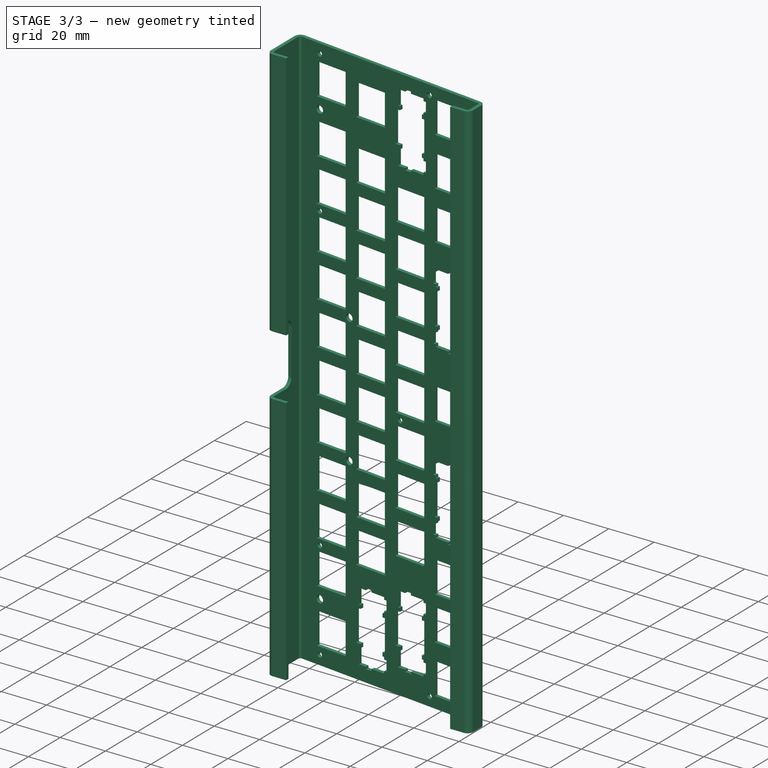
[diagram: stage 3 of 3 — iso view after this stage's code; geometry added in this stage tinted green]
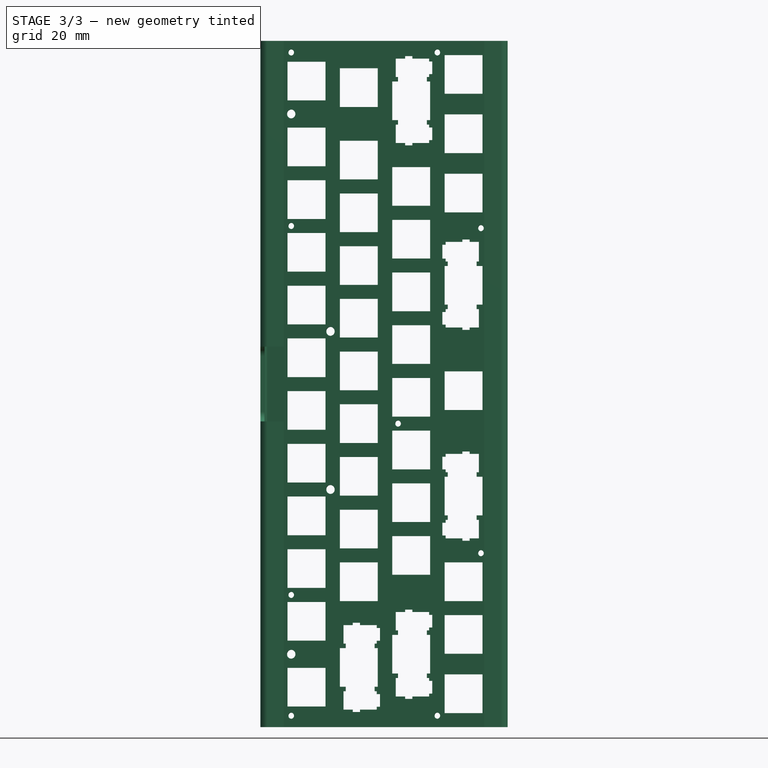
[diagram: stage 3 of 3 — front view after this stage's code; geometry added in this stage tinted green]
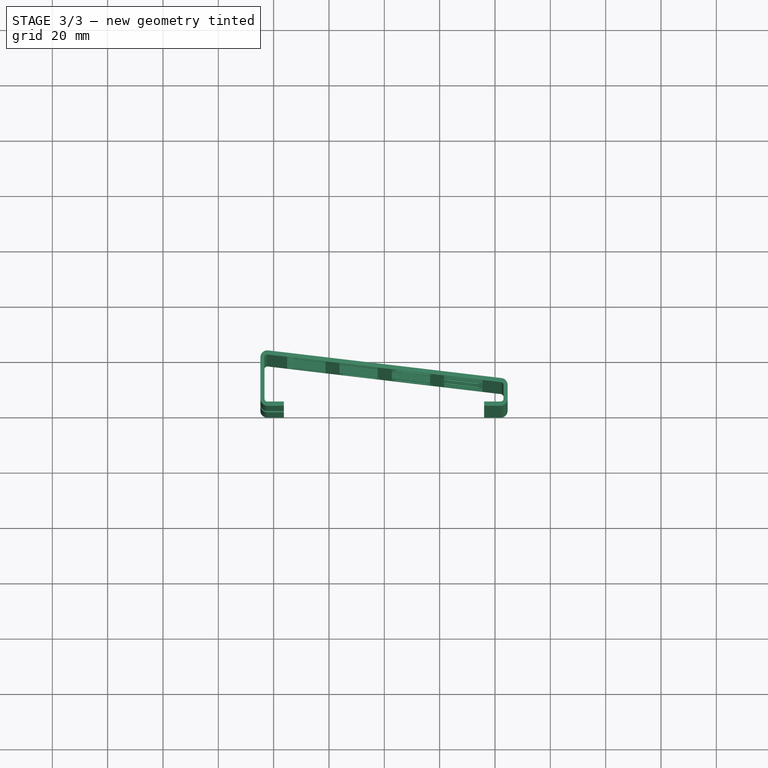
[diagram: stage 3 of 3 — top view after this stage's code; geometry added in this stage tinted green]
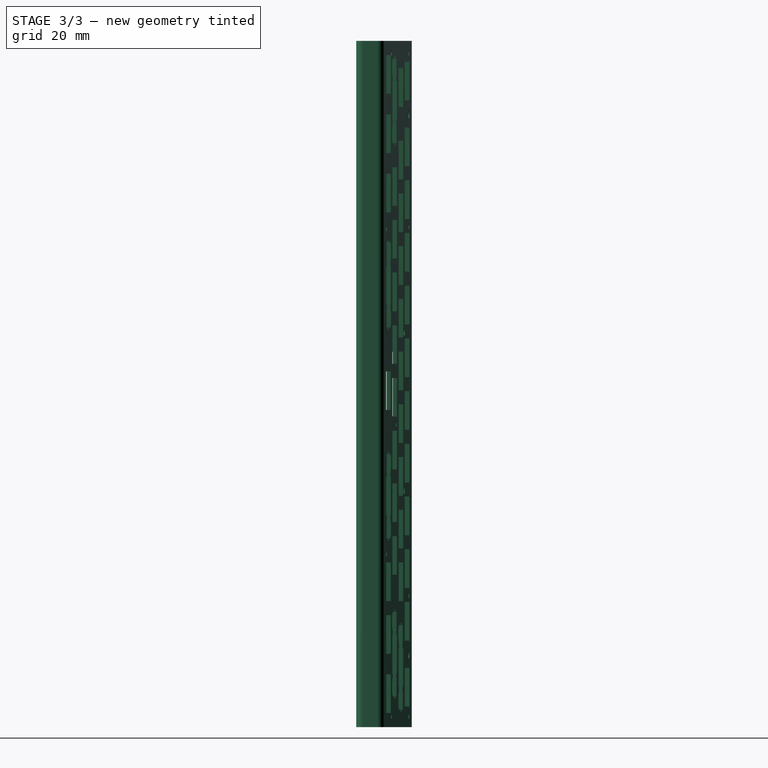
[diagram: stage 3 of 3 — right view after this stage's code; geometry added in this stage tinted green]
FEATURE [PartDesign::Boolean] Boolean001
  BaseFeature = -> Boolean
  Group = -> [Body001]
  Type = 2
FEATURE [PartDesign::Body] Body003
  Group = -> [Sketch005,Pad003]
  Origin = -> Origin003
  Tip = -> Pad003
FEATURE [PartDesign::Boolean] Boolean002
  BaseFeature = -> Boolean001
  Group = -> [Body003]
  Type = 1
FEATURE [PartDesign::Body] Body
  Group = -> [Sketch,Sketch002,Pad001,Boolean,Boolean001,Boolean002]
  Origin = -> Origin
  Tip = -> Boolean002
FEATURE [Raytracing::RayFeature] Body_View
  Result = <blob: 386377 chars omitted>
  Source = -> Body
  Transparency = 0
FEATURE [Raytracing::RayFeature] Body_View001 .. Body_View013  x13 (patterned run collapsed; names and placements below)
  Result = <blob: 386377 chars omitted>
  Source = -> Body
  Transparency = 0
FEATURE [Raytracing::RayProject] PovProject
  Camera = // declares position and view direction\n\n// Generated by FreeCAD (http://www.freecadweb.org/)\n#declare cam_location =  <226.467,236.767,235.469>;\n#declare cam_look_at  = <-3.14023,7.16025,5.86214>;\n#declare cam_sky      = <-0.707107,-8.9407e-08,0.707107>;\n#declare cam_angle    = 45; \ncamera {\n  location  cam_location\n  look_at   cam_look_at\n  sky       cam_sky\n  angle     cam_angle \n  right x*3840/2400\n}
  Group = -> [Body_View,Body_View001,Body_View002,Body_View003,Body_View004,Body_View005,Body_View006,Body_View007,Body_View008,Body_View009,Body_View010,Body_View011,Body_View012,Body_View013]
  Template = /Applications/FreeCAD 19 pre.app/Contents/Resources/share/Mod/Raytracing/Templates/ProjectStd.pov
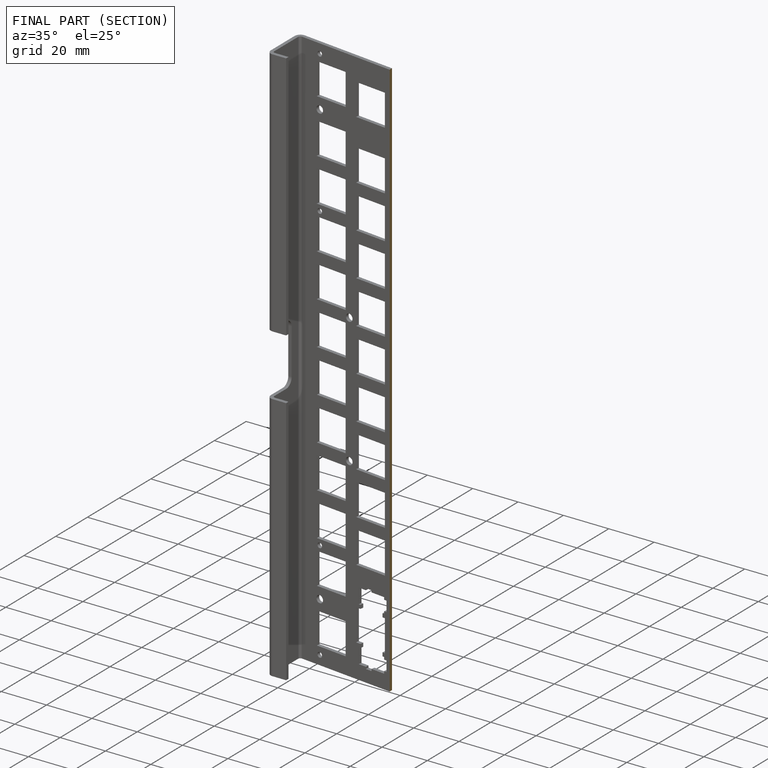
[diagram: finished part — half-section view (interior)]
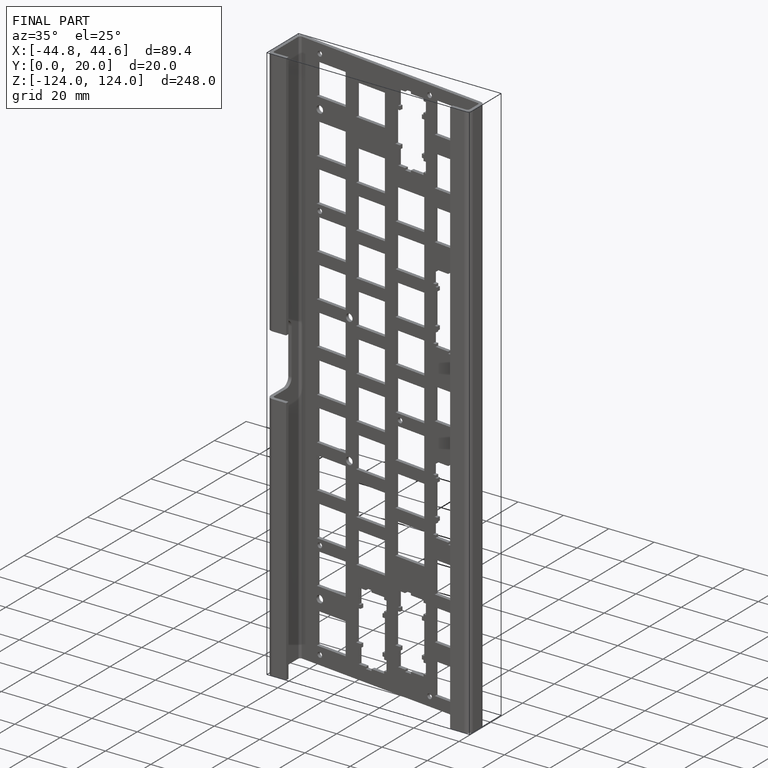
[diagram: finished part — iso view with bounding-box wireframe]
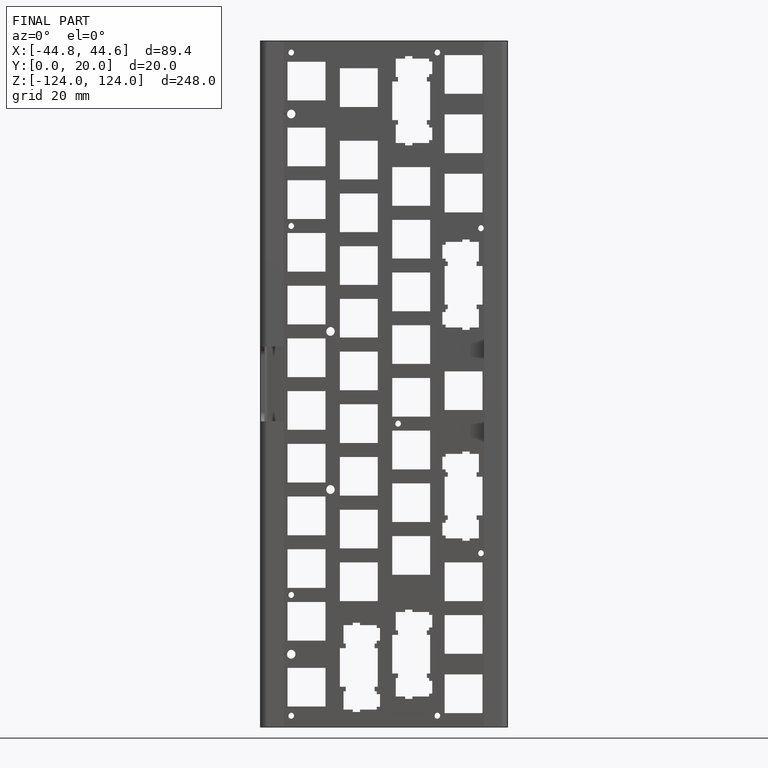
[diagram: finished part — front view with bounding-box wireframe]
